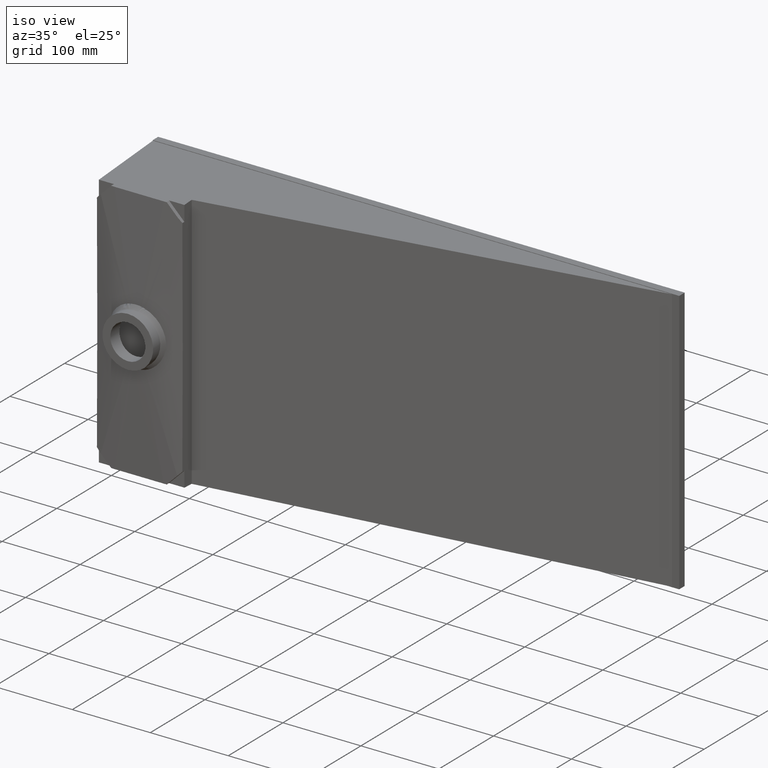
[diagram: clean part render]
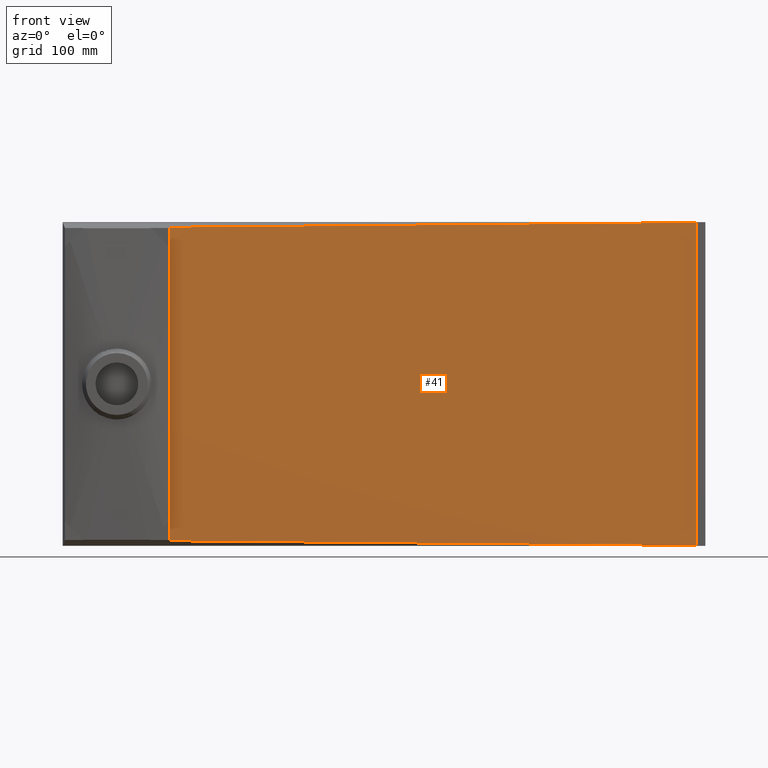
[diagram: tour spotlight — one face highlighted and labeled with its STEP entity id]
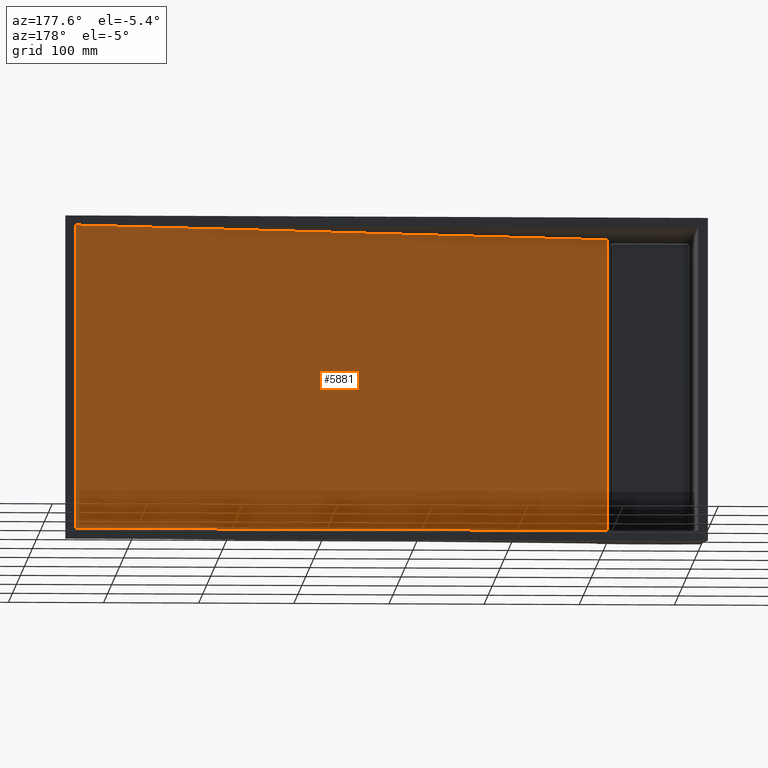
[diagram: tour spotlight — one face highlighted and labeled with its STEP entity id]
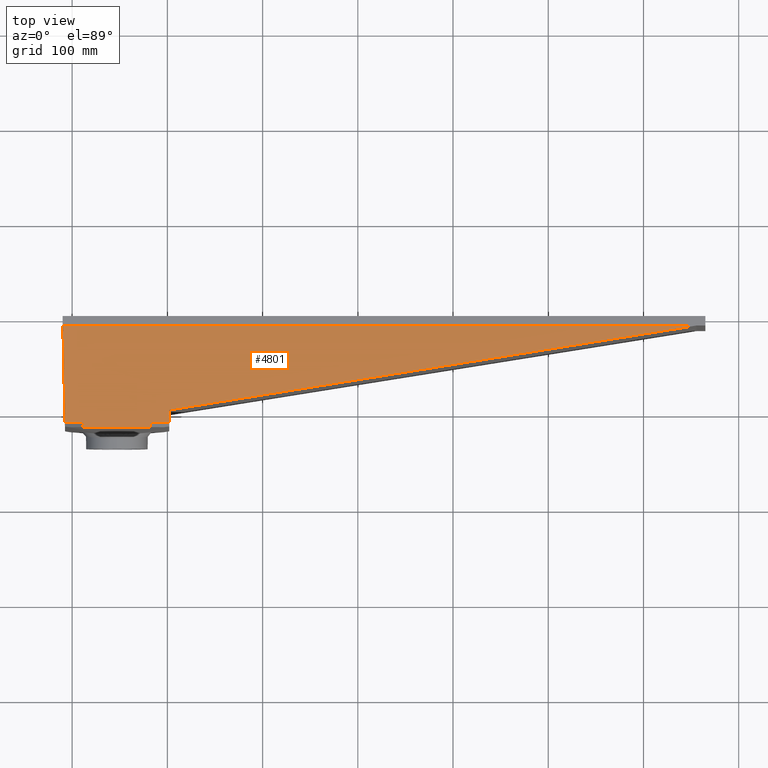
[diagram: tour spotlight — one face highlighted and labeled with its STEP entity id]
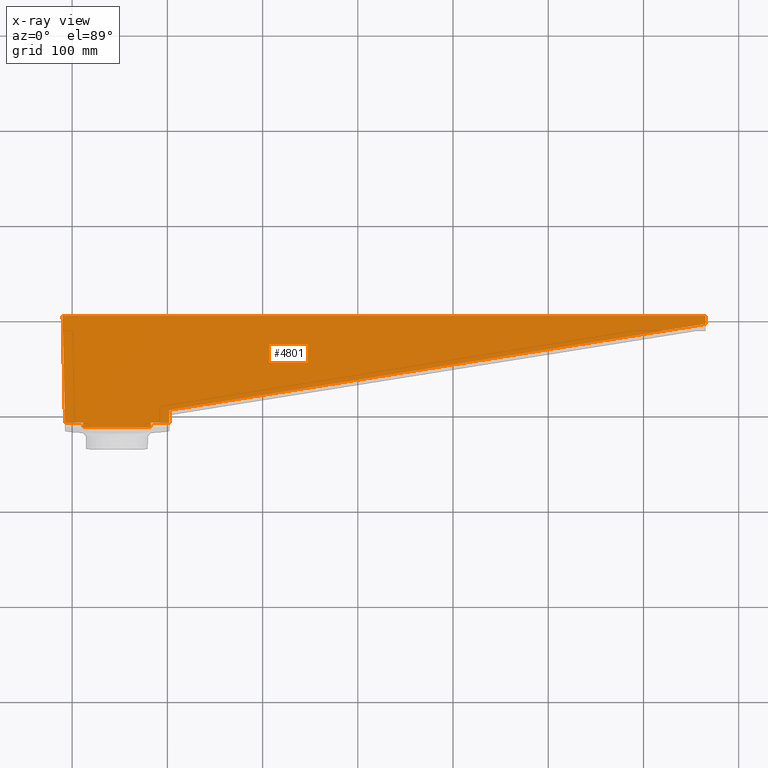
[diagram: x-ray of the same camera — body ghosted, this tour face saturated]
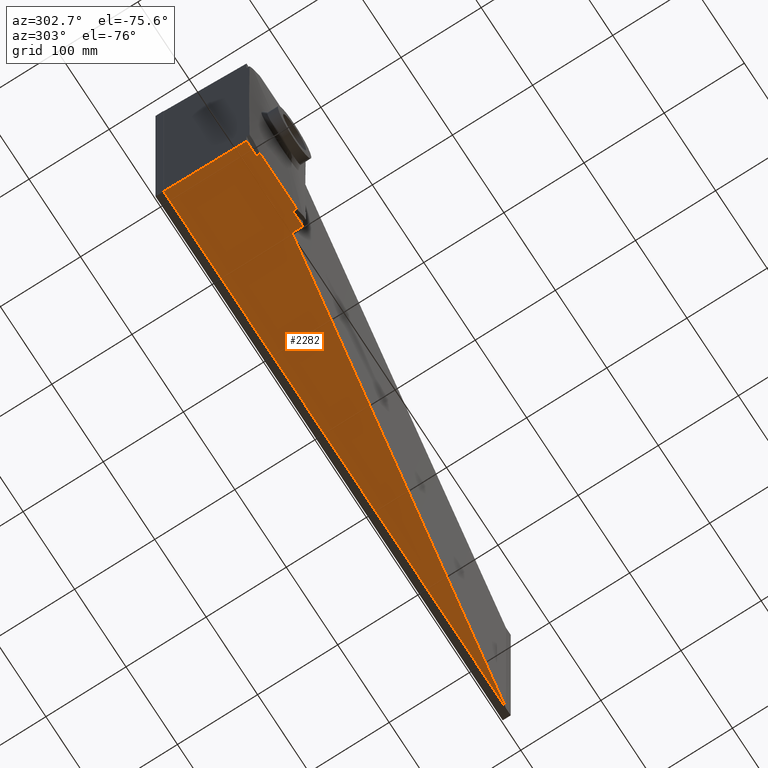
[diagram: tour spotlight — one face highlighted and labeled with its STEP entity id]
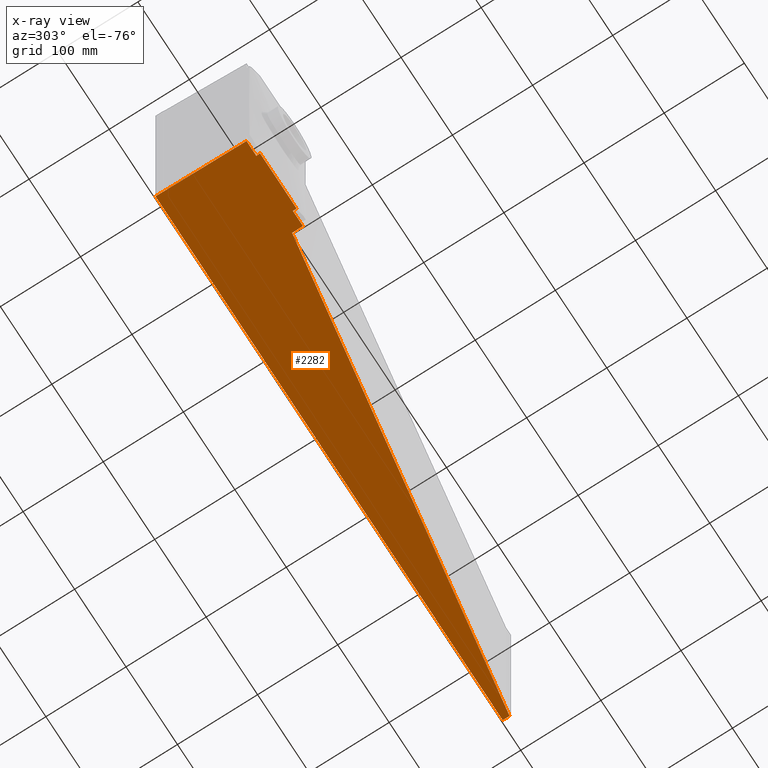
[diagram: x-ray of the same camera — body ghosted, this tour face saturated]
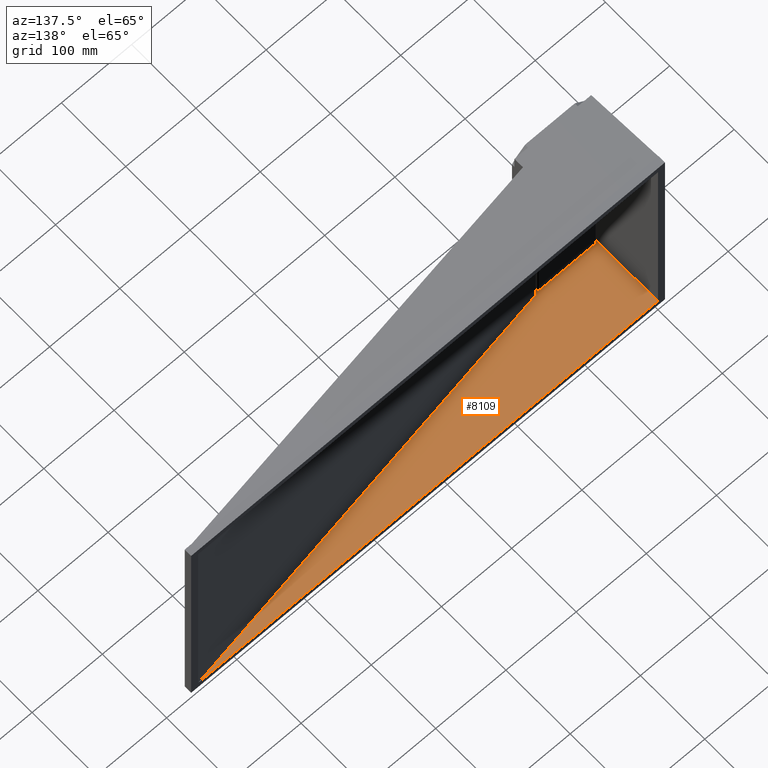
[diagram: tour spotlight — one face highlighted and labeled with its STEP entity id]
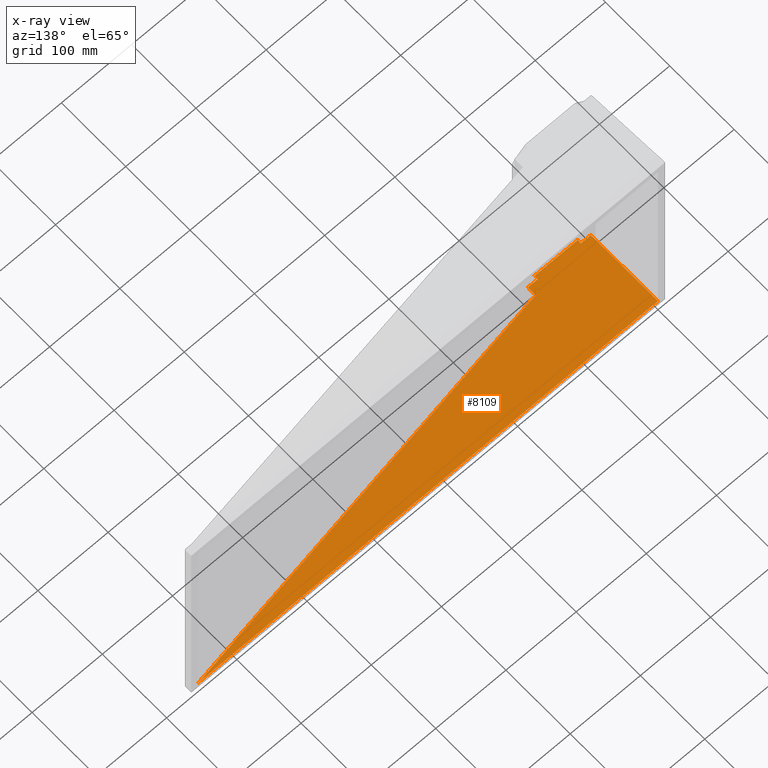
[diagram: x-ray of the same camera — body ghosted, this tour face saturated]
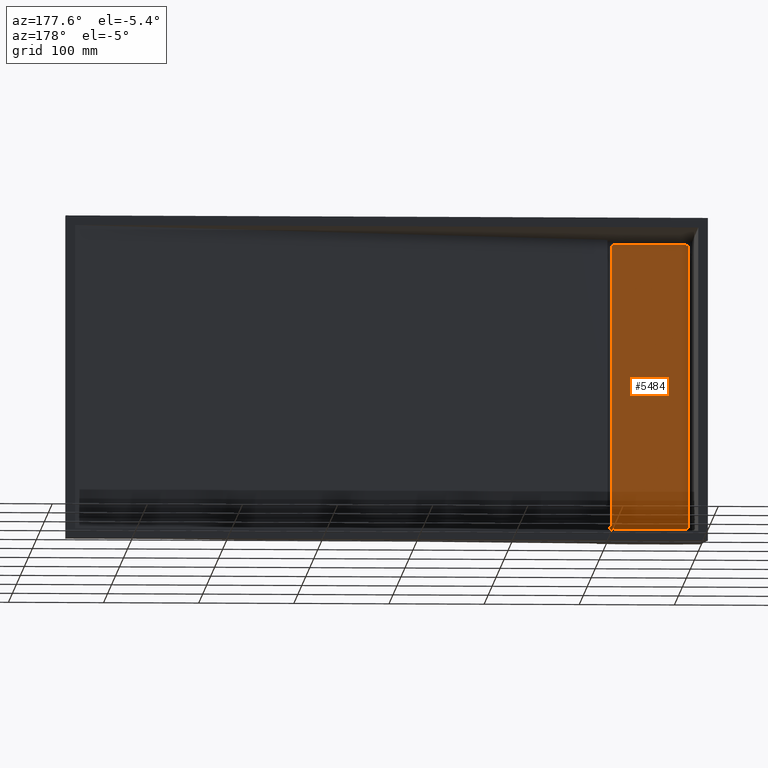
[diagram: tour spotlight — one face highlighted and labeled with its STEP entity id]
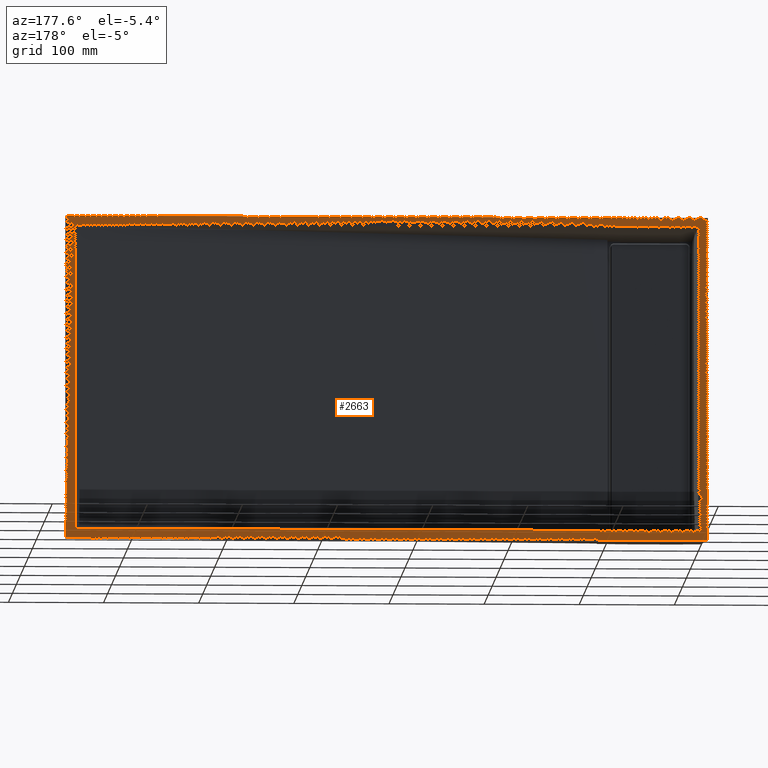
[diagram: tour spotlight — one face highlighted and labeled with its STEP entity id]
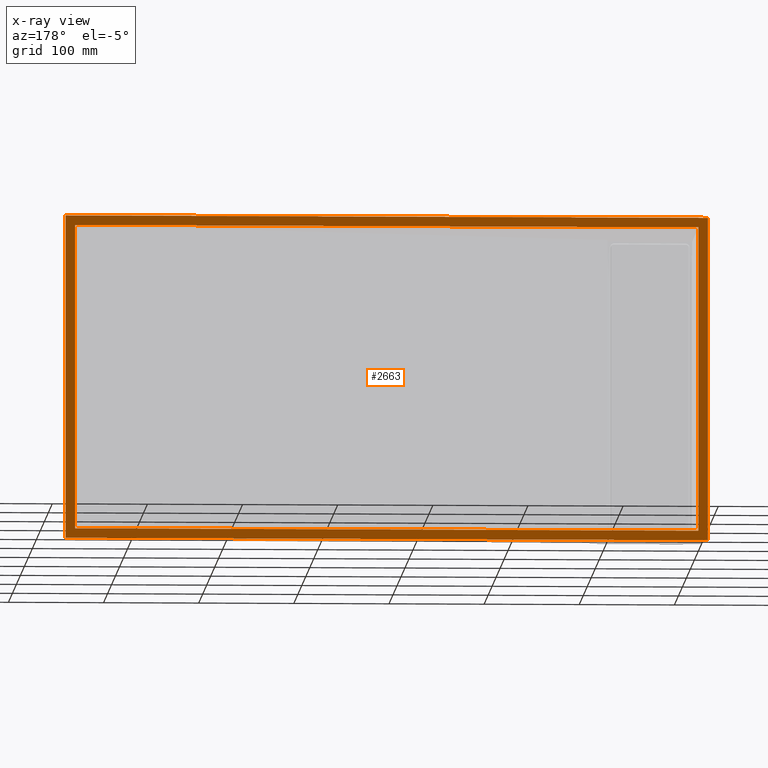
[diagram: x-ray of the same camera — body ghosted, this tour face saturated]
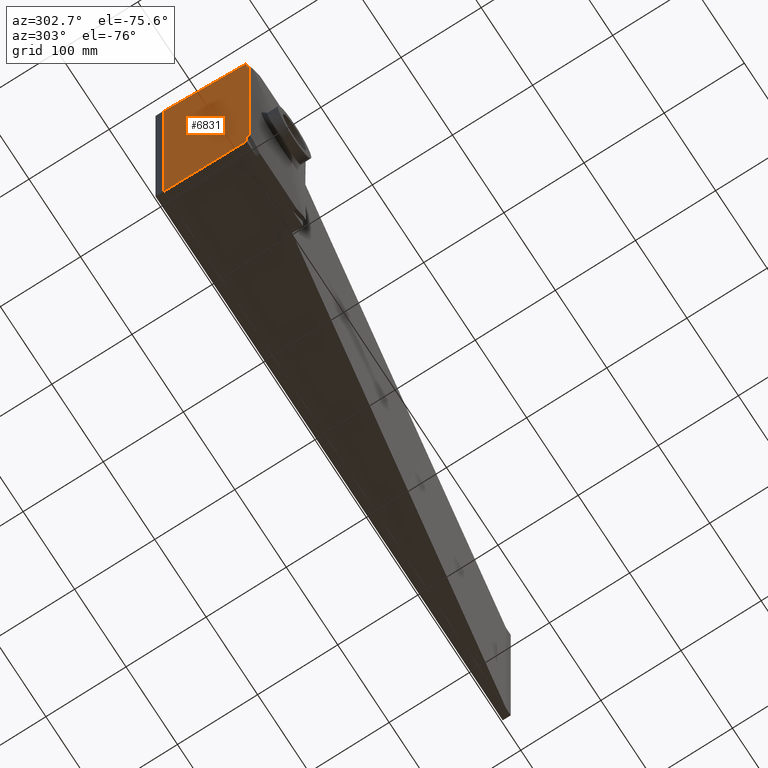
[diagram: tour spotlight — one face highlighted and labeled with its STEP entity id]
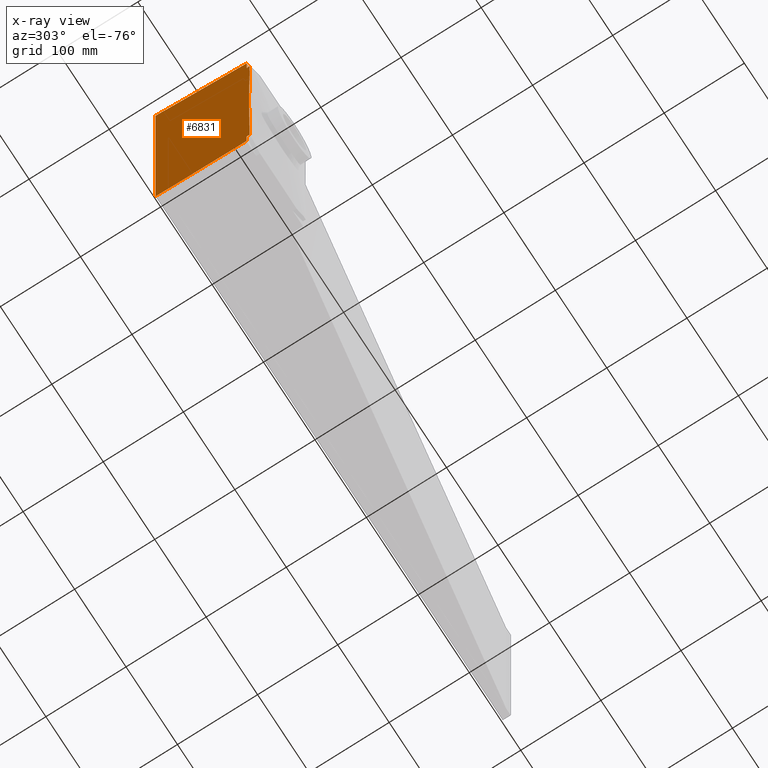
[diagram: x-ray of the same camera — body ghosted, this tour face saturated]
A machine part: a face-by-face anatomy tour. The part has 93 B-rep faces; the first image is the clean iso view, then the 8 largest visible faces are spotlighted one at a time (largest first), each with its STEP entity span.

Face 1 — front view, entity #41. In plain terms, the highlighted planar face has unit normal (0.1579, -0.9875, -0).
Definition (entity closure, byte-faithful):
#41 = ADVANCED_FACE ( 'NONE', ( #5549 ), #4248, .T. ) ;
#252 = EDGE_LOOP ( 'NONE', ( #5179, #5557, #5735, #998 ) ) ;
#333 = EDGE_CURVE ( 'NONE', #1598, #3714, #3036, .T. ) ;
#793 = CARTESIAN_POINT ( 'NONE',  ( 102.0000000000000000, -98.52838767923954300, -324.5416208941088600 ) ) ;
#998 = ORIENTED_EDGE ( 'NONE', *, *, #6112, .F. ) ;
#1099 = VECTOR ( 'NONE', #7096, 1000.000000000000100 ) ;
#1144 = CARTESIAN_POINT ( 'NONE',  ( 102.0000000000000300, -98.52838767923954300, 4.541620894108881100 ) ) ;
#1598 = VERTEX_POINT ( 'NONE', #2391 ) ;
#1677 = DIRECTION ( 'NONE',  ( -0.9874245432834220000, -0.1578476179316304900, 0.008769312107312812700 ) ) ;
#1692 = CARTESIAN_POINT ( 'NONE',  ( 93.49656327366901100, -99.88772925183242500, -324.4661019178536800 ) ) ;
#2073 = LINE ( 'NONE', #3341, #2869 ) ;
#2235 = VECTOR ( 'NONE', #2785, 1000.000000000000000 ) ;
#2337 = CARTESIAN_POINT ( 'NONE',  ( 665.0000000000000000, -8.528387679239552100, -330.0154202096221600 ) ) ;
#2391 = CARTESIAN_POINT ( 'NONE',  ( 665.0000000000000000, -8.528387679239545000, -329.5416208941088600 ) ) ;
#2785 = DIRECTION ( 'NONE',  ( 0.0000000000000000000, -2.146910392545639500E-017, 1.000000000000000000 ) ) ;
#2869 = VECTOR ( 'NONE', #3307, 1000.000000000000000 ) ;
#3036 = LINE ( 'NONE', #2337, #2235 ) ;
#3307 = DIRECTION ( 'NONE',  ( -1.343011723336883000E-016, 3.120612552326141700E-033, -1.000000000000000000 ) ) ;
#3341 = CARTESIAN_POINT ( 'NONE',  ( 102.0000000000000300, -98.52838767923954300, -1.369871957803620900E-014 ) ) ;
#3545 = DIRECTION ( 'NONE',  ( 0.9874625123591839200, 0.1578536875885018800, 0.0000000000000000000 ) ) ;
#3714 = VERTEX_POINT ( 'NONE', #6553 ) ;
#3756 = DIRECTION ( 'NONE',  ( 0.1578536875885019100, -0.9874625123591840300, -2.119993530033159300E-017 ) ) ;
#4010 = VECTOR ( 'NONE', #1677, 1000.000000000000100 ) ;
#4248 = PLANE ( 'NONE',  #7675 ) ;
#4690 = LINE ( 'NONE', #6695, #1099 ) ;
#5179 = ORIENTED_EDGE ( 'NONE', *, *, #333, .T. ) ;
#5549 = FACE_OUTER_BOUND ( 'NONE', #252, .T. ) ;
#5557 = ORIENTED_EDGE ( 'NONE', *, *, #6474, .T. ) ;
#5735 = ORIENTED_EDGE ( 'NONE', *, *, #8213, .T. ) ;
#6112 = EDGE_CURVE ( 'NONE', #1598, #7887, #6952, .T. ) ;
#6251 = VERTEX_POINT ( 'NONE', #1144 ) ;
#6474 = EDGE_CURVE ( 'NONE', #3714, #6251, #4690, .T. ) ;
#6553 = CARTESIAN_POINT ( 'NONE',  ( 664.9999999999996600, -8.528387679239621400, 9.541620894108852700 ) ) ;
#6695 = CARTESIAN_POINT ( 'NONE',  ( 17.86682848926818700, -111.9777401409906500, 3.794434646233825000 ) ) ;
#6952 = LINE ( 'NONE', #1692, #4010 ) ;
#7096 = DIRECTION ( 'NONE',  ( -0.9874245432834220000, -0.1578476179316304900, -0.008769312107312759000 ) ) ;
#7629 = CARTESIAN_POINT ( 'NONE',  ( 17.89968715474889600, -111.9724874235958700, -2.403948969289038500E-015 ) ) ;
#7675 = AXIS2_PLACEMENT_3D ( 'NONE', #7629, #3756, #3545 ) ;
#7887 = VERTEX_POINT ( 'NONE', #793 ) ;
#8213 = EDGE_CURVE ( 'NONE', #6251, #7887, #2073, .T. ) ;

Face 2 — auxiliary view, entity #5881. In plain terms, the highlighted planar face has unit normal (0.1579, -0.9875, -0).
Definition (entity closure, byte-faithful):
#801 = LINE ( 'NONE', #1782, #7225 ) ;
#911 = CARTESIAN_POINT ( 'NONE',  ( 655.0000000000000000, 0.0000000000000000000, 0.0000000000000000000 ) ) ;
#1116 = VECTOR ( 'NONE', #6076, 1000.000000000000100 ) ;
#1345 = VERTEX_POINT ( 'NONE', #2385 ) ;
#1507 = DIRECTION ( 'NONE',  ( -0.9874245432834220000, -0.1578476179316304900, 0.008769312107312812700 ) ) ;
#1782 = CARTESIAN_POINT ( 'NONE',  ( 655.0000000000000000, 0.0000000000000000000, -320.0000000000000000 ) ) ;
#1932 = DIRECTION ( 'NONE',  ( -1.343011723336883000E-016, -0.0000000000000000000, -1.000000000000000000 ) ) ;
#2385 = CARTESIAN_POINT ( 'NONE',  ( 92.00000000000000000, -90.00000000000000000, -315.0000000000000000 ) ) ;
#2457 = CARTESIAN_POINT ( 'NONE',  ( 92.00000000000000000, -90.00000000000000000, -315.0000000000000000 ) ) ;
#2469 = VECTOR ( 'NONE', #7849, 1000.000000000000000 ) ;
#2505 = AXIS2_PLACEMENT_3D ( 'NONE', #3101, #3018, #3010 ) ;
#2736 = VECTOR ( 'NONE', #1932, 1000.000000000000000 ) ;
#2928 = CARTESIAN_POINT ( 'NONE',  ( 655.0000000000000000, 0.0000000000000000000, -320.0000000000000000 ) ) ;
#3010 = DIRECTION ( 'NONE',  ( 0.9874625123591839200, 0.1578536875885018800, 0.0000000000000000000 ) ) ;
#3018 = DIRECTION ( 'NONE',  ( 0.1578536875885019100, -0.9874625123591840300, -2.119993530033159300E-017 ) ) ;
#3050 = PLANE ( 'NONE',  #2505 ) ;
#3101 = CARTESIAN_POINT ( 'NONE',  ( 16.32115027886387500, -102.0978623000040200, -2.191949616285722700E-015 ) ) ;
#3139 = ORIENTED_EDGE ( 'NONE', *, *, #6153, .T. ) ;
#3222 = FACE_OUTER_BOUND ( 'NONE', #4121, .T. ) ;
#4006 = CARTESIAN_POINT ( 'NONE',  ( 655.0000000000000000, 0.0000000000000000000, 0.0000000000000000000 ) ) ;
#4028 = VERTEX_POINT ( 'NONE', #2928 ) ;
#4121 = EDGE_LOOP ( 'NONE', ( #4920, #8091, #3139, #4895 ) ) ;
#4602 = LINE ( 'NONE', #2457, #2736 ) ;
#4895 = ORIENTED_EDGE ( 'NONE', *, *, #4947, .F. ) ;
#4920 = ORIENTED_EDGE ( 'NONE', *, *, #6991, .F. ) ;
#4947 = EDGE_CURVE ( 'NONE', #6444, #1345, #4602, .T. ) ;
#5881 = ADVANCED_FACE ( 'NONE', ( #3222 ), #3050, .F. ) ;
#6076 = DIRECTION ( 'NONE',  ( -0.9874245432834220000, -0.1578476179316305200, -0.008769312107312814500 ) ) ;
#6153 = EDGE_CURVE ( 'NONE', #4028, #1345, #801, .T. ) ;
#6247 = CARTESIAN_POINT ( 'NONE',  ( 655.0000000000000000, 0.0000000000000000000, 0.0000000000000000000 ) ) ;
#6444 = VERTEX_POINT ( 'NONE', #8110 ) ;
#6914 = LINE ( 'NONE', #4006, #2469 ) ;
#6991 = EDGE_CURVE ( 'NONE', #8004, #6444, #7730, .T. ) ;
#7225 = VECTOR ( 'NONE', #1507, 1000.000000000000100 ) ;
#7730 = LINE ( 'NONE', #6247, #1116 ) ;
#7849 = DIRECTION ( 'NONE',  ( 0.0000000000000000000, 0.0000000000000000000, -1.000000000000000000 ) ) ;
#8004 = VERTEX_POINT ( 'NONE', #911 ) ;
#8091 = ORIENTED_EDGE ( 'NONE', *, *, #8123, .T. ) ;
#8110 = CARTESIAN_POINT ( 'NONE',  ( 92.00000000000004300, -90.00000000000000000, -5.000000000000004400 ) ) ;
#8123 = EDGE_CURVE ( 'NONE', #8004, #4028, #6914, .T. ) ;

Face 3 — top view, entity #4801. An x-ray twin of the same camera follows (body ghosted, this face saturated) — the face is partly hidden behind the body. In plain terms, the highlighted planar face has unit normal (0, -0.0555, 0.9985).
Definition (entity closure, byte-faithful):
#76 = ORIENTED_EDGE ( 'NONE', *, *, #6237, .F. ) ;
#93 = EDGE_CURVE ( 'NONE', #4075, #2531, #3884, .T. ) ;
#349 = AXIS2_PLACEMENT_3D ( 'NONE', #2943, #2822, #2770 ) ;
#660 = LINE ( 'NONE', #3034, #3994 ) ;
#792 = LINE ( 'NONE', #1419, #3628 ) ;
#1092 = VECTOR ( 'NONE', #1183, 1000.000000000000100 ) ;
#1099 = VECTOR ( 'NONE', #7096, 1000.000000000000100 ) ;
#1144 = CARTESIAN_POINT ( 'NONE',  ( 102.0000000000000300, -98.52838767923954300, 4.541620894108881100 ) ) ;
#1177 = DIRECTION ( 'NONE',  ( -1.000000000000000000, 0.0000000000000000000, 4.818676322157799500E-017 ) ) ;
#1183 = DIRECTION ( 'NONE',  ( 0.02218254820132585500, -0.9982146690596641600, -0.05545637050331467300 ) ) ;
#1192 = ORIENTED_EDGE ( 'NONE', *, *, #5347, .F. ) ;
#1210 = CARTESIAN_POINT ( 'NONE',  ( 1.827819332714086900E-016, -111.9999999999999900, 3.793197987399973900 ) ) ;
#1214 = VERTEX_POINT ( 'NONE', #4694 ) ;
#1413 = VERTEX_POINT ( 'NONE', #7339 ) ;
#1419 = CARTESIAN_POINT ( 'NONE',  ( 102.0000000000000300, -446.4786395727389300, -14.78894865552993200 ) ) ;
#1448 = DIRECTION ( 'NONE',  ( 7.449688664677521200E-018, 0.9984603532054123800, 0.05547001962252291100 ) ) ;
#1527 = VECTOR ( 'NONE', #3937, 1000.000000000000100 ) ;
#1564 = EDGE_CURVE ( 'NONE', #4839, #1214, #3816, .T. ) ;
#1607 = ORIENTED_EDGE ( 'NONE', *, *, #1564, .T. ) ;
#1705 = CARTESIAN_POINT ( 'NONE',  ( 78.74294822847757300, -116.6860818408072000, 3.532860107355123800 ) ) ;
#1794 = B_SPLINE_CURVE_WITH_KNOTS ( 'NONE', 3,
 ( #8041, #5427, #5407, #5399, #5393, #5385, #5373, #5355, #5343, #5340, #5333, #5325, #5315 ),
 .UNSPECIFIED., .F., .F.,
 ( 4, 3, 3, 3, 4 ),
 ( 0.0000000000000000000, 0.01587147408765479000, 0.03174294817560038800, 0.04761442232735621500, 0.06348589649345449900 ),
 .UNSPECIFIED. ) ;
#1903 = CARTESIAN_POINT ( 'NONE',  ( 102.0000000000000300, -111.9999999999999900, 3.793197987399968200 ) ) ;
#1910 = B_SPLINE_CURVE_WITH_KNOTS ( 'NONE', 3,
 ( #6048, #6090, #5453, #5431 ),
 .UNSPECIFIED., .F., .F.,
 ( 4, 4 ),
 ( 0.0000000000000000000, 0.003861459846372677500 ),
 .UNSPECIFIED. ) ;
#1937 = VECTOR ( 'NONE', #2705, 1000.000000000000000 ) ;
#1988 = ORIENTED_EDGE ( 'NONE', *, *, #5617, .F. ) ;
#2019 = CARTESIAN_POINT ( 'NONE',  ( -7.985226356274241200, -90.77591136473346000, 4.972314022692558000 ) ) ;
#2336 = DIRECTION ( 'NONE',  ( -1.000000000000000000, 0.0000000000000000000, 4.818676322157799500E-017 ) ) ;
#2453 = CARTESIAN_POINT ( 'NONE',  ( 82.34893763633100100, -111.9999999999999900, 3.793197987399969100 ) ) ;
#2531 = VERTEX_POINT ( 'NONE', #7258 ) ;
#2574 = EDGE_CURVE ( 'NONE', #2531, #6085, #1910, .T. ) ;
#2683 = CARTESIAN_POINT ( 'NONE',  ( 11.39755694272786400, -116.5630975769416200, 3.539692566458767500 ) ) ;
#2693 = VERTEX_POINT ( 'NONE', #2953 ) ;
#2705 = DIRECTION ( 'NONE',  ( 1.000000000000000000, 0.0000000000000000000, -4.818676322157799500E-017 ) ) ;
#2770 = DIRECTION ( 'NONE',  ( 0.0000000000000000000, -0.9984603532054123800, -0.05547001962252291100 ) ) ;
#2822 = DIRECTION ( 'NONE',  ( 4.811257262604234000E-017, -0.05547001962252291800, 0.9984603532054124900 ) ) ;
#2887 = CARTESIAN_POINT ( 'NONE',  ( 2.000000000000039100, 0.0000000000000000000, 10.01542020962219600 ) ) ;
#2924 = CARTESIAN_POINT ( 'NONE',  ( -10.00246883104609300, 0.0000000000000000000, 10.01542020962219600 ) ) ;
#2932 = FACE_OUTER_BOUND ( 'NONE', #3402, .T. ) ;
#2943 = CARTESIAN_POINT ( 'NONE',  ( 2.000000000000038600, -90.55470019622522700, 4.984603532054126000 ) ) ;
#2953 = CARTESIAN_POINT ( 'NONE',  ( 15.25705177152248900, -116.6860818408072300, 3.532860107355126900 ) ) ;
#3034 = CARTESIAN_POINT ( 'NONE',  ( 1.827819332714086900E-016, -111.9999999999999900, 3.793197987399973900 ) ) ;
#3136 = LINE ( 'NONE', #1210, #4698 ) ;
#3402 = EDGE_LOOP ( 'NONE', ( #5336, #1192, #1607, #6406, #3704, #7030, #1988, #8115, #4384, #76, #5911, #7195 ) ) ;
#3543 = B_SPLINE_CURVE_WITH_KNOTS ( 'NONE', 3,
 ( #4036, #4037, #4023, #4011 ),
 .UNSPECIFIED., .F., .F.,
 ( 4, 4 ),
 ( 0.0000000000000000000, 0.003861459846372667100 ),
 .UNSPECIFIED. ) ;
#3628 = VECTOR ( 'NONE', #1448, 1000.000000000000200 ) ;
#3704 = ORIENTED_EDGE ( 'NONE', *, *, #5685, .F. ) ;
#3714 = VERTEX_POINT ( 'NONE', #6553 ) ;
#3816 = LINE ( 'NONE', #2019, #1092 ) ;
#3884 = LINE ( 'NONE', #6768, #3917 ) ;
#3917 = VECTOR ( 'NONE', #4269, 1000.000000000000100 ) ;
#3937 = DIRECTION ( 'NONE',  ( 0.05538487756217112800, 0.9969277961190803300, 0.05538487756217112800 ) ) ;
#3951 = CARTESIAN_POINT ( 'NONE',  ( 12.15583457118111500, -102.9141002647829500, 4.297970194912030800 ) ) ;
#3994 = VECTOR ( 'NONE', #2336, 1000.000000000000000 ) ;
#4011 = CARTESIAN_POINT ( 'NONE',  ( 11.39755694272786400, -116.5630975769416200, 3.539692566458767500 ) ) ;
#4023 = CARTESIAN_POINT ( 'NONE',  ( 12.68405216945524700, -116.6041876268782900, 3.537409785906749700 ) ) ;
#4036 = CARTESIAN_POINT ( 'NONE',  ( 15.25705177152248900, -116.6860818408072300, 3.532860107355126900 ) ) ;
#4037 = CARTESIAN_POINT ( 'NONE',  ( 13.97055032657576100, -116.6451863401356500, 3.535132079614658400 ) ) ;
#4075 = VERTEX_POINT ( 'NONE', #2453 ) ;
#4082 = EDGE_CURVE ( 'NONE', #4665, #1214, #660, .T. ) ;
#4269 = DIRECTION ( 'NONE',  ( 0.05538487756217112800, -0.9969277961190803300, -0.05538487756217112800 ) ) ;
#4384 = ORIENTED_EDGE ( 'NONE', *, *, #93, .F. ) ;
#4481 = LINE ( 'NONE', #2887, #1937 ) ;
#4665 = VERTEX_POINT ( 'NONE', #6633 ) ;
#4690 = LINE ( 'NONE', #6695, #1099 ) ;
#4694 = CARTESIAN_POINT ( 'NONE',  ( -7.513579942157206500, -111.9999999999999900, 3.793197987399973900 ) ) ;
#4698 = VECTOR ( 'NONE', #1177, 1000.000000000000000 ) ;
#4801 = ADVANCED_FACE ( 'NONE', ( #2932 ), #6222, .T. ) ;
#4839 = VERTEX_POINT ( 'NONE', #2924 ) ;
#4887 = VERTEX_POINT ( 'NONE', #2683 ) ;
#4952 = VERTEX_POINT ( 'NONE', #1903 ) ;
#5010 = DIRECTION ( 'NONE',  ( 0.0000000000000000000, 0.9984603532054123800, 0.05547001962252291100 ) ) ;
#5020 = CARTESIAN_POINT ( 'NONE',  ( 665.0000000000000000, -155.4119357770658500, 1.381423777563006700 ) ) ;
#5315 = CARTESIAN_POINT ( 'NONE',  ( 15.25705177152248900, -116.6860818408072300, 3.532860107355126900 ) ) ;
#5325 = CARTESIAN_POINT ( 'NONE',  ( 20.54754315081935800, -116.6857669087487000, 3.532877603580598900 ) ) ;
#5333 = CARTESIAN_POINT ( 'NONE',  ( 25.83803453508747000, -116.6855248819317000, 3.532891049514877300 ) ) ;
#5336 = ORIENTED_EDGE ( 'NONE', *, *, #8143, .T. ) ;
#5340 = CARTESIAN_POINT ( 'NONE',  ( 31.12852592132469500, -116.6853637224093900, 3.532900002821671000 ) ) ;
#5343 = CARTESIAN_POINT ( 'NONE',  ( 36.41901730275197500, -116.6852025628872600, 3.532908956128456800 ) ) ;
#5347 = EDGE_CURVE ( 'NONE', #4839, #1413, #4481, .T. ) ;
#5355 = CARTESIAN_POINT ( 'NONE',  ( 41.70950868723740300, -116.6851207026257200, 3.532913503920762600 ) ) ;
#5373 = CARTESIAN_POINT ( 'NONE',  ( 47.00000007112689800, -116.6851207026264600, 3.532913503920721300 ) ) ;
#5385 = CARTESIAN_POINT ( 'NONE',  ( 52.29049143374631100, -116.6851207026272000, 3.532913503920680500 ) ) ;
#5393 = CARTESIAN_POINT ( 'NONE',  ( 57.58098279696166300, -116.6852025628895100, 3.532908956128332000 ) ) ;
#5399 = CARTESIAN_POINT ( 'NONE',  ( 62.87147415711886800, -116.6853637224117900, 3.532900002821538300 ) ) ;
#5407 = CARTESIAN_POINT ( 'NONE',  ( 68.16196551720827300, -116.6855248819340900, 3.532891049514745000 ) ) ;
#5411 = LINE ( 'NONE', #5020, #6520 ) ;
#5427 = CARTESIAN_POINT ( 'NONE',  ( 73.45245687532855100, -116.6857669087503500, 3.532877603580504700 ) ) ;
#5431 = CARTESIAN_POINT ( 'NONE',  ( 78.74294822847757300, -116.6860818408072000, 3.532860107355123800 ) ) ;
#5453 = CARTESIAN_POINT ( 'NONE',  ( 80.02944967342432400, -116.6451863401356400, 3.535132079614663700 ) ) ;
#5617 = EDGE_CURVE ( 'NONE', #6085, #2693, #1794, .T. ) ;
#5647 = EDGE_CURVE ( 'NONE', #2693, #4887, #3543, .T. ) ;
#5685 = EDGE_CURVE ( 'NONE', #4887, #4665, #8192, .T. ) ;
#5911 = ORIENTED_EDGE ( 'NONE', *, *, #6183, .T. ) ;
#6048 = CARTESIAN_POINT ( 'NONE',  ( 82.60244305727221100, -116.5630975769415900, 3.539692566458768400 ) ) ;
#6085 = VERTEX_POINT ( 'NONE', #1705 ) ;
#6090 = CARTESIAN_POINT ( 'NONE',  ( 81.31594783054484300, -116.6041876268782400, 3.537409785906731500 ) ) ;
#6183 = EDGE_CURVE ( 'NONE', #4952, #6251, #792, .T. ) ;
#6222 = PLANE ( 'NONE',  #349 ) ;
#6237 = EDGE_CURVE ( 'NONE', #4952, #4075, #3136, .T. ) ;
#6251 = VERTEX_POINT ( 'NONE', #1144 ) ;
#6406 = ORIENTED_EDGE ( 'NONE', *, *, #4082, .F. ) ;
#6474 = EDGE_CURVE ( 'NONE', #3714, #6251, #4690, .T. ) ;
#6520 = VECTOR ( 'NONE', #5010, 1000.000000000000200 ) ;
#6553 = CARTESIAN_POINT ( 'NONE',  ( 664.9999999999996600, -8.528387679239621400, 9.541620894108852700 ) ) ;
#6633 = CARTESIAN_POINT ( 'NONE',  ( 11.65106236366905700, -111.9999999999999900, 3.793197987399972600 ) ) ;
#6695 = CARTESIAN_POINT ( 'NONE',  ( 17.86682848926818700, -111.9777401409906500, 3.794434646233825000 ) ) ;
#6768 = CARTESIAN_POINT ( 'NONE',  ( 81.55582187053674700, -97.72391621570318400, 4.586313753194238200 ) ) ;
#7030 = ORIENTED_EDGE ( 'NONE', *, *, #5647, .F. ) ;
#7096 = DIRECTION ( 'NONE',  ( -0.9874245432834220000, -0.1578476179316304900, -0.008769312107312759000 ) ) ;
#7195 = ORIENTED_EDGE ( 'NONE', *, *, #6474, .F. ) ;
#7258 = CARTESIAN_POINT ( 'NONE',  ( 82.60244305727221100, -116.5630975769415900, 3.539692566458768400 ) ) ;
#7339 = CARTESIAN_POINT ( 'NONE',  ( 664.9999999999997700, 0.0000000000000000000, 10.01542020962216400 ) ) ;
#8041 = CARTESIAN_POINT ( 'NONE',  ( 78.74294822847757300, -116.6860818408072000, 3.532860107355123800 ) ) ;
#8115 = ORIENTED_EDGE ( 'NONE', *, *, #2574, .F. ) ;
#8143 = EDGE_CURVE ( 'NONE', #3714, #1413, #5411, .T. ) ;
#8192 = LINE ( 'NONE', #3951, #1527 ) ;

Face 4 — auxiliary view, entity #2282. An x-ray twin of the same camera follows (body ghosted, this face saturated) — the face is partly hidden behind the body. In plain terms, the highlighted planar face has unit normal (0, -0.0555, -0.9985).
Definition (entity closure, byte-faithful):
#47 = VERTEX_POINT ( 'NONE', #471 ) ;
#150 = ORIENTED_EDGE ( 'NONE', *, *, #652, .T. ) ;
#358 = EDGE_CURVE ( 'NONE', #734, #3090, #6876, .T. ) ;
#397 = EDGE_CURVE ( 'NONE', #47, #1310, #2961, .T. ) ;
#471 = CARTESIAN_POINT ( 'NONE',  ( 11.39755694272778900, -116.5630975769416000, -323.5396925664586500 ) ) ;
#615 = VERTEX_POINT ( 'NONE', #4720 ) ;
#652 = EDGE_CURVE ( 'NONE', #6673, #1598, #5789, .T. ) ;
#662 = ORIENTED_EDGE ( 'NONE', *, *, #6769, .F. ) ;
#702 = EDGE_CURVE ( 'NONE', #615, #6294, #4983, .T. ) ;
#713 = ORIENTED_EDGE ( 'NONE', *, *, #702, .F. ) ;
#734 = VERTEX_POINT ( 'NONE', #3365 ) ;
#793 = CARTESIAN_POINT ( 'NONE',  ( 102.0000000000000000, -98.52838767923954300, -324.5416208941088600 ) ) ;
#923 = EDGE_CURVE ( 'NONE', #6294, #3351, #1536, .T. ) ;
#1059 = CARTESIAN_POINT ( 'NONE',  ( -7.513579942157246400, -111.9999999999999900, -323.7931979873999900 ) ) ;
#1121 = EDGE_LOOP ( 'NONE', ( #150, #6741, #3559, #1212, #4876, #8062, #662, #5366, #3223, #5693, #713, #3812 ) ) ;
#1204 = VECTOR ( 'NONE', #3679, 1000.000000000000100 ) ;
#1212 = ORIENTED_EDGE ( 'NONE', *, *, #6435, .F. ) ;
#1310 = VERTEX_POINT ( 'NONE', #2291 ) ;
#1402 = CARTESIAN_POINT ( 'NONE',  ( 664.9999999999997700, 0.0000000000000000000, -330.0154202096221600 ) ) ;
#1437 = DIRECTION ( 'NONE',  ( 7.449688664677527300E-018, -0.9984603532054123800, 0.05547001962252295900 ) ) ;
#1536 = LINE ( 'NONE', #2548, #7230 ) ;
#1597 = CARTESIAN_POINT ( 'NONE',  ( 12.68405216945518500, -116.6041876268782600, -323.5374097859066200 ) ) ;
#1598 = VERTEX_POINT ( 'NONE', #2391 ) ;
#1677 = DIRECTION ( 'NONE',  ( -0.9874245432834220000, -0.1578476179316304900, 0.008769312107312812700 ) ) ;
#1692 = CARTESIAN_POINT ( 'NONE',  ( 93.49656327366901100, -99.88772925183242500, -324.4661019178536800 ) ) ;
#1829 = VERTEX_POINT ( 'NONE', #4755 ) ;
#1845 = CARTESIAN_POINT ( 'NONE',  ( 78.74294822847747400, -116.6860818408072300, -323.5328601073550200 ) ) ;
#2189 = DIRECTION ( 'NONE',  ( 1.000000000000000000, 0.0000000000000000000, 0.0000000000000000000 ) ) ;
#2282 = ADVANCED_FACE ( 'NONE', ( #3911 ), #7049, .T. ) ;
#2291 = CARTESIAN_POINT ( 'NONE',  ( 15.25705177152247800, -116.6860818408072300, -323.5328601073550800 ) ) ;
#2391 = CARTESIAN_POINT ( 'NONE',  ( 665.0000000000000000, -8.528387679239545000, -329.5416208941088600 ) ) ;
#2410 = CARTESIAN_POINT ( 'NONE',  ( 13.97055032657572800, -116.6451863401357200, -323.5351320796146400 ) ) ;
#2548 = CARTESIAN_POINT ( 'NONE',  ( 0.0000000000000000000, -111.9999999999999900, -323.7931979873999400 ) ) ;
#2625 = EDGE_CURVE ( 'NONE', #6673, #615, #4604, .T. ) ;
#2777 = AXIS2_PLACEMENT_3D ( 'NONE', #5842, #4527, #4493 ) ;
#2961 = B_SPLINE_CURVE_WITH_KNOTS ( 'NONE', 3,
 ( #4758, #1597, #2410, #7663 ),
 .UNSPECIFIED., .F., .F.,
 ( 4, 4 ),
 ( 0.0000000000000000000, 0.003861459846372731300 ),
 .UNSPECIFIED. ) ;
#3063 = DIRECTION ( 'NONE',  ( -0.05538487756217112100, 0.9969277961190803300, -0.05538487756217117000 ) ) ;
#3090 = VERTEX_POINT ( 'NONE', #4198 ) ;
#3223 = ORIENTED_EDGE ( 'NONE', *, *, #5563, .F. ) ;
#3351 = VERTEX_POINT ( 'NONE', #6966 ) ;
#3365 = CARTESIAN_POINT ( 'NONE',  ( 82.60244305727216800, -116.5630975769416000, -323.5396925664588800 ) ) ;
#3415 = EDGE_CURVE ( 'NONE', #4988, #734, #4930, .T. ) ;
#3559 = ORIENTED_EDGE ( 'NONE', *, *, #7812, .T. ) ;
#3679 = DIRECTION ( 'NONE',  ( 0.02218254820132586900, -0.9982146690596641600, 0.05545637050331471400 ) ) ;
#3812 = ORIENTED_EDGE ( 'NONE', *, *, #2625, .F. ) ;
#3905 = VECTOR ( 'NONE', #3063, 1000.000000000000100 ) ;
#3911 = FACE_OUTER_BOUND ( 'NONE', #1121, .T. ) ;
#3918 = CARTESIAN_POINT ( 'NONE',  ( 82.60244305727216800, -116.5630975769416000, -323.5396925664588800 ) ) ;
#3942 = CARTESIAN_POINT ( 'NONE',  ( 81.31594783054481500, -116.6041876268782600, -323.5374097859067300 ) ) ;
#4010 = VECTOR ( 'NONE', #1677, 1000.000000000000100 ) ;
#4060 = CARTESIAN_POINT ( 'NONE',  ( -7.985226356274281100, -90.77591136473344600, -324.9723140226925600 ) ) ;
#4188 = VECTOR ( 'NONE', #6981, 1000.000000000000000 ) ;
#4198 = CARTESIAN_POINT ( 'NONE',  ( 82.34893763633091600, -111.9999999999999900, -323.7931979873999900 ) ) ;
#4244 = CARTESIAN_POINT ( 'NONE',  ( 665.0000000000000000, -136.5794584615384500, -322.4276725173144800 ) ) ;
#4489 = DIRECTION ( 'NONE',  ( 0.0000000000000000000, -0.9984603532054123800, 0.05547001962252295900 ) ) ;
#4493 = DIRECTION ( 'NONE',  ( 0.0000000000000000000, 0.9984603532054123800, -0.05547001962252295900 ) ) ;
#4527 = DIRECTION ( 'NONE',  ( 0.0000000000000000000, -0.05547001962252296600, -0.9984603532054124900 ) ) ;
#4604 = LINE ( 'NONE', #4809, #6084 ) ;
#4720 = CARTESIAN_POINT ( 'NONE',  ( -10.00246883104613500, 0.0000000000000000000, -330.0154202096221600 ) ) ;
#4755 = CARTESIAN_POINT ( 'NONE',  ( 102.0000000000000000, -111.9999999999999900, -323.7931979873999900 ) ) ;
#4758 = CARTESIAN_POINT ( 'NONE',  ( 11.39755694272778900, -116.5630975769416000, -323.5396925664586500 ) ) ;
#4776 = CARTESIAN_POINT ( 'NONE',  ( 82.53741696256119600, -115.3926278721449300, -323.6047186611696700 ) ) ;
#4809 = CARTESIAN_POINT ( 'NONE',  ( 92.00000000000000000, 0.0000000000000000000, -330.0154202096221600 ) ) ;
#4827 = DIRECTION ( 'NONE',  ( -1.000000000000000000, 0.0000000000000000000, 0.0000000000000000000 ) ) ;
#4876 = ORIENTED_EDGE ( 'NONE', *, *, #358, .F. ) ;
#4930 = B_SPLINE_CURVE_WITH_KNOTS ( 'NONE', 3,
 ( #6517, #5793, #3942, #3918 ),
 .UNSPECIFIED., .F., .F.,
 ( 4, 4 ),
 ( 0.0000000000000000000, 0.003861459846372733400 ),
 .UNSPECIFIED. ) ;
#4983 = LINE ( 'NONE', #4060, #1204 ) ;
#4988 = VERTEX_POINT ( 'NONE', #1845 ) ;
#5366 = ORIENTED_EDGE ( 'NONE', *, *, #397, .F. ) ;
#5563 = EDGE_CURVE ( 'NONE', #3351, #47, #6574, .T. ) ;
#5612 = LINE ( 'NONE', #6405, #7473 ) ;
#5693 = ORIENTED_EDGE ( 'NONE', *, *, #923, .F. ) ;
#5789 = LINE ( 'NONE', #4244, #7327 ) ;
#5793 = CARTESIAN_POINT ( 'NONE',  ( 80.02944967342425300, -116.6451863401357100, -323.5351320796145800 ) ) ;
#5842 = CARTESIAN_POINT ( 'NONE',  ( 92.00000000000000000, -90.55470019622522700, -324.9846035320541100 ) ) ;
#6084 = VECTOR ( 'NONE', #4827, 1000.000000000000000 ) ;
#6112 = EDGE_CURVE ( 'NONE', #1598, #7887, #6952, .T. ) ;
#6294 = VERTEX_POINT ( 'NONE', #1059 ) ;
#6380 = VECTOR ( 'NONE', #8152, 1000.000000000000100 ) ;
#6405 = CARTESIAN_POINT ( 'NONE',  ( 102.0000000000000000, -429.3094088035081800, -306.1648974983161800 ) ) ;
#6435 = EDGE_CURVE ( 'NONE', #3090, #1829, #8102, .T. ) ;
#6517 = CARTESIAN_POINT ( 'NONE',  ( 78.74294822847747400, -116.6860818408072300, -323.5328601073550200 ) ) ;
#6574 = LINE ( 'NONE', #8172, #6380 ) ;
#6673 = VERTEX_POINT ( 'NONE', #1402 ) ;
#6741 = ORIENTED_EDGE ( 'NONE', *, *, #6112, .T. ) ;
#6769 = EDGE_CURVE ( 'NONE', #1310, #4988, #7615, .T. ) ;
#6876 = LINE ( 'NONE', #4776, #3905 ) ;
#6952 = LINE ( 'NONE', #1692, #4010 ) ;
#6966 = CARTESIAN_POINT ( 'NONE',  ( 11.65106236366900400, -111.9999999999999900, -323.7931979873999900 ) ) ;
#6981 = DIRECTION ( 'NONE',  ( 1.000000000000000000, 0.0000000000000000000, 0.0000000000000000000 ) ) ;
#7049 = PLANE ( 'NONE',  #2777 ) ;
#7151 = CARTESIAN_POINT ( 'NONE',  ( 0.0000000000000000000, -111.9999999999999900, -323.7931979873999400 ) ) ;
#7230 = VECTOR ( 'NONE', #2189, 1000.000000000000000 ) ;
#7327 = VECTOR ( 'NONE', #4489, 1000.000000000000200 ) ;
#7473 = VECTOR ( 'NONE', #1437, 1000.000000000000200 ) ;
#7550 = CARTESIAN_POINT ( 'NONE',  ( 78.74294822847747400, -116.6860818408072300, -323.5328601073550200 ) ) ;
#7602 = CARTESIAN_POINT ( 'NONE',  ( 73.45245684918063500, -116.6857669087486800, -323.5328776035805700 ) ) ;
#7615 = B_SPLINE_CURVE_WITH_KNOTS ( 'NONE', 3,
 ( #7890, #7865, #7847, #7819, #7791, #7763, #7736, #7709, #7682, #7658, #7633, #7602, #7550 ),
 .UNSPECIFIED., .F., .F.,
 ( 4, 3, 3, 3, 4 ),
 ( 0.0000000000000000000, 0.01587147408765477900, 0.03174294817560034700, 0.04761442232735613900, 0.06348589649345441600 ),
 .UNSPECIFIED. ) ;
#7633 = CARTESIAN_POINT ( 'NONE',  ( 68.16196546491251200, -116.6855248819317000, -323.5328910495148900 ) ) ;
#7658 = CARTESIAN_POINT ( 'NONE',  ( 62.87147407867528400, -116.6853637224093900, -323.5329000028216900 ) ) ;
#7663 = CARTESIAN_POINT ( 'NONE',  ( 15.25705177152247800, -116.6860818408072300, -323.5328601073550800 ) ) ;
#7682 = CARTESIAN_POINT ( 'NONE',  ( 57.58098269724801100, -116.6852025628872600, -323.5329089561284400 ) ) ;
#7709 = CARTESIAN_POINT ( 'NONE',  ( 52.29049131276259700, -116.6851207026257200, -323.5329135039207800 ) ) ;
#7736 = CARTESIAN_POINT ( 'NONE',  ( 46.99999992887311600, -116.6851207026264600, -323.5329135039207200 ) ) ;
#7763 = CARTESIAN_POINT ( 'NONE',  ( 41.70950856625371700, -116.6851207026272000, -323.5329135039206700 ) ) ;
#7791 = CARTESIAN_POINT ( 'NONE',  ( 36.41901720303837900, -116.6852025628895100, -323.5329089561282700 ) ) ;
#7812 = EDGE_CURVE ( 'NONE', #7887, #1829, #5612, .T. ) ;
#7819 = CARTESIAN_POINT ( 'NONE',  ( 31.12852584288117400, -116.6853637224117900, -323.5329000028214100 ) ) ;
#7847 = CARTESIAN_POINT ( 'NONE',  ( 25.83803448279178700, -116.6855248819340700, -323.5328910495146000 ) ) ;
#7865 = CARTESIAN_POINT ( 'NONE',  ( 20.54754312467151000, -116.6857669087502000, -323.5328776035805200 ) ) ;
#7887 = VERTEX_POINT ( 'NONE', #793 ) ;
#7890 = CARTESIAN_POINT ( 'NONE',  ( 15.25705177152247800, -116.6860818408072300, -323.5328601073550800 ) ) ;
#8062 = ORIENTED_EDGE ( 'NONE', *, *, #3415, .F. ) ;
#8102 = LINE ( 'NONE', #7151, #4188 ) ;
#8152 = DIRECTION ( 'NONE',  ( -0.05538487756217112100, -0.9969277961190803300, 0.05538487756217117000 ) ) ;
#8172 = CARTESIAN_POINT ( 'NONE',  ( 11.17423947915649400, -120.5828119212246600, -323.3163751028874900 ) ) ;

Face 5 — auxiliary view, entity #8109. An x-ray twin of the same camera follows (body ghosted, this face saturated) — the face is partly hidden behind the body. In plain terms, the highlighted planar face has unit normal (0, -0.0555, -0.9985).
Definition (entity closure, byte-faithful):
#77 = VERTEX_POINT ( 'NONE', #1412 ) ;
#130 = DIRECTION ( 'NONE',  ( 1.000000000000000000, 0.0000000000000000000, 0.0000000000000000000 ) ) ;
#178 = LINE ( 'NONE', #1578, #394 ) ;
#350 = CARTESIAN_POINT ( 'NONE',  ( 76.81682146348079200, -107.0356038962750100, -314.0535775613180900 ) ) ;
#394 = VECTOR ( 'NONE', #1559, 1000.000000000000200 ) ;
#477 = ORIENTED_EDGE ( 'NONE', *, *, #7311, .T. ) ;
#563 = CARTESIAN_POINT ( 'NONE',  ( 77.56857043458791200, -107.0118779742695500, -314.0548956680961500 ) ) ;
#608 = ORIENTED_EDGE ( 'NONE', *, *, #6153, .F. ) ;
#801 = LINE ( 'NONE', #1782, #7225 ) ;
#912 = VECTOR ( 'NONE', #6198, 1000.000000000000000 ) ;
#985 = LINE ( 'NONE', #7517, #1205 ) ;
#1046 = VERTEX_POINT ( 'NONE', #2004 ) ;
#1205 = VECTOR ( 'NONE', #7483, 999.9999999999998900 ) ;
#1213 = CARTESIAN_POINT ( 'NONE',  ( 78.39263803680975700, -115.0674846625767000, -313.6073619631901600 ) ) ;
#1294 = VERTEX_POINT ( 'NONE', #6681 ) ;
#1331 = CARTESIAN_POINT ( 'NONE',  ( 76.81682146348079200, -107.0356038962750100, -314.0535775613180900 ) ) ;
#1345 = VERTEX_POINT ( 'NONE', #2385 ) ;
#1359 = CARTESIAN_POINT ( 'NONE',  ( 17.18317853651913700, -107.0356038962750100, -314.0535775613180900 ) ) ;
#1361 = CARTESIAN_POINT ( 'NONE',  ( 27.18317853634035000, -107.0356682003966700, -314.0535739888668400 ) ) ;
#1410 = EDGE_CURVE ( 'NONE', #3007, #77, #5891, .T. ) ;
#1412 = CARTESIAN_POINT ( 'NONE',  ( 16.33333333333344600, -102.0000000000000000, -314.3333333333334300 ) ) ;
#1416 = CARTESIAN_POINT ( 'NONE',  ( 22.18317853639305800, -107.0356404674479900, -314.0535755295862300 ) ) ;
#1507 = DIRECTION ( 'NONE',  ( -0.9874245432834220000, -0.1578476179316304900, 0.008769312107312812700 ) ) ;
#1559 = DIRECTION ( 'NONE',  ( 7.449688664677527300E-018, -0.9984603532054123800, 0.05547001962252295900 ) ) ;
#1578 = CARTESIAN_POINT ( 'NONE',  ( 92.00000000000000000, -428.7547086072829100, -296.1802939662620700 ) ) ;
#1756 = CARTESIAN_POINT ( 'NONE',  ( 32.18317853631405300, -107.0356867121544200, -314.0535729604358700 ) ) ;
#1782 = CARTESIAN_POINT ( 'NONE',  ( 655.0000000000000000, 0.0000000000000000000, -320.0000000000000000 ) ) ;
#1783 = FACE_OUTER_BOUND ( 'NONE', #7590, .T. ) ;
#1796 = ORIENTED_EDGE ( 'NONE', *, *, #7346, .T. ) ;
#1930 = CARTESIAN_POINT ( 'NONE',  ( 16.80730388925352500, -107.0237460475790800, -314.0542363306900600 ) ) ;
#2004 = CARTESIAN_POINT ( 'NONE',  ( 0.0000000000000000000, 0.0000000000000000000, -320.0000000000000000 ) ) ;
#2131 = CARTESIAN_POINT ( 'NONE',  ( 37.18317853628841600, -107.0357052239121500, -314.0535719320048400 ) ) ;
#2190 = CARTESIAN_POINT ( 'NONE',  ( 47.18317853631484800, -107.0357142814592600, -314.0535714288078000 ) ) ;
#2207 = CARTESIAN_POINT ( 'NONE',  ( 57.06105951210555800, -107.0357138225825900, -314.0535714543009400 ) ) ;
#2293 = CARTESIAN_POINT ( 'NONE',  ( 17.18317853651913700, -107.0356038962750100, -314.0535775613180900 ) ) ;
#2341 = CARTESIAN_POINT ( 'NONE',  ( 76.81682146348079200, -107.0356038962750100, -314.0535775613180900 ) ) ;
#2349 = CARTESIAN_POINT ( 'NONE',  ( 42.18317853630611600, -107.0357145137341200, -314.0535714159036000 ) ) ;
#2373 = CARTESIAN_POINT ( 'NONE',  ( 16.05555555555554600, -107.0000000000000000, -314.0555555555555400 ) ) ;
#2385 = CARTESIAN_POINT ( 'NONE',  ( 92.00000000000000000, -90.00000000000000000, -315.0000000000000000 ) ) ;
#2483 = ORIENTED_EDGE ( 'NONE', *, *, #7616, .T. ) ;
#2655 = LINE ( 'NONE', #6357, #6110 ) ;
#2808 = CARTESIAN_POINT ( 'NONE',  ( 16.43142956541203500, -107.0118779742695500, -314.0548956680961500 ) ) ;
#2928 = CARTESIAN_POINT ( 'NONE',  ( 655.0000000000000000, 0.0000000000000000000, -320.0000000000000000 ) ) ;
#3007 = VERTEX_POINT ( 'NONE', #7048 ) ;
#3016 = ORIENTED_EDGE ( 'NONE', *, *, #7138, .T. ) ;
#3247 = LINE ( 'NONE', #6265, #912 ) ;
#3274 = ORIENTED_EDGE ( 'NONE', *, *, #6125, .F. ) ;
#3346 = CARTESIAN_POINT ( 'NONE',  ( 77.19269611074642500, -107.0237460475791000, -314.0542363306900600 ) ) ;
#3462 = CARTESIAN_POINT ( 'NONE',  ( 15.31901840490795800, -120.2576687116564400, -313.3190184049079200 ) ) ;
#3575 = CARTESIAN_POINT ( 'NONE',  ( 66.93894048795510800, -107.0356761454137900, -314.0535735474770100 ) ) ;
#4028 = VERTEX_POINT ( 'NONE', #2928 ) ;
#4362 = EDGE_CURVE ( 'NONE', #1046, #3007, #985, .T. ) ;
#4469 = B_SPLINE_CURVE_WITH_KNOTS ( 'NONE', 3,
 ( #2373, #2808, #1930, #2293 ),
 .UNSPECIFIED., .F., .F.,
 ( 4, 4 ),
 ( 3.122502256758252800E-017, 0.001128186658797403600 ),
 .UNSPECIFIED. ) ;
#4473 = ORIENTED_EDGE ( 'NONE', *, *, #7089, .T. ) ;
#4733 = VECTOR ( 'NONE', #7998, 1000.000000000000100 ) ;
#4831 = LINE ( 'NONE', #3462, #4733 ) ;
#5155 = B_SPLINE_CURVE_WITH_KNOTS ( 'NONE', 3,
 ( #6877, #1416, #1361, #1756, #2131, #2349, #2190, #2207, #3575, #2341 ),
 .UNSPECIFIED., .F., .F.,
 ( 4, 3, 3, 4 ),
 ( 0.0000000000000000000, 0.01500000000002424200, 0.03000000000005171800, 0.05963364292757472600 ),
 .UNSPECIFIED. ) ;
#5160 = ORIENTED_EDGE ( 'NONE', *, *, #6923, .T. ) ;
#5258 = DIRECTION ( 'NONE',  ( -0.05538487756217112100, 0.9969277961190803300, -0.05538487756217117000 ) ) ;
#5274 = VERTEX_POINT ( 'NONE', #6536 ) ;
#5891 = LINE ( 'NONE', #6931, #6384 ) ;
#6110 = VECTOR ( 'NONE', #6277, 1000.000000000000000 ) ;
#6125 = EDGE_CURVE ( 'NONE', #1345, #1294, #178, .T. ) ;
#6153 = EDGE_CURVE ( 'NONE', #4028, #1345, #801, .T. ) ;
#6194 = VERTEX_POINT ( 'NONE', #1359 ) ;
#6198 = DIRECTION ( 'NONE',  ( 1.000000000000000000, 0.0000000000000000000, 0.0000000000000000000 ) ) ;
#6207 = VERTEX_POINT ( 'NONE', #1331 ) ;
#6265 = CARTESIAN_POINT ( 'NONE',  ( 0.0000000000000000000, -102.0000000000000000, -314.3333333333333700 ) ) ;
#6277 = DIRECTION ( 'NONE',  ( -1.000000000000000000, -0.0000000000000000000, -0.0000000000000000000 ) ) ;
#6357 = CARTESIAN_POINT ( 'NONE',  ( 0.0000000000000000000, 0.0000000000000000000, -320.0000000000000000 ) ) ;
#6384 = VECTOR ( 'NONE', #130, 1000.000000000000000 ) ;
#6421 = LINE ( 'NONE', #1213, #6620 ) ;
#6477 = CARTESIAN_POINT ( 'NONE',  ( 77.66666666666645800, -102.0000000000000000, -314.3333333333334300 ) ) ;
#6487 = VERTEX_POINT ( 'NONE', #6477 ) ;
#6500 = ORIENTED_EDGE ( 'NONE', *, *, #6916, .T. ) ;
#6536 = CARTESIAN_POINT ( 'NONE',  ( 16.05555555555554600, -107.0000000000000000, -314.0555555555555400 ) ) ;
#6620 = VECTOR ( 'NONE', #5258, 1000.000000000000100 ) ;
#6681 = CARTESIAN_POINT ( 'NONE',  ( 92.00000000000000000, -102.0000000000000000, -314.3333333333333700 ) ) ;
#6829 = VERTEX_POINT ( 'NONE', #7305 ) ;
#6877 = CARTESIAN_POINT ( 'NONE',  ( 17.18317853651913700, -107.0356038962750100, -314.0535775613180900 ) ) ;
#6916 = EDGE_CURVE ( 'NONE', #4028, #1046, #2655, .T. ) ;
#6923 = EDGE_CURVE ( 'NONE', #6487, #1294, #3247, .T. ) ;
#6931 = CARTESIAN_POINT ( 'NONE',  ( 0.0000000000000000000, -102.0000000000000000, -314.3333333333333700 ) ) ;
#7048 = CARTESIAN_POINT ( 'NONE',  ( 2.266666666666666600, -102.0000000000000000, -314.3333333333333700 ) ) ;
#7089 = EDGE_CURVE ( 'NONE', #77, #5274, #4831, .T. ) ;
#7091 = ORIENTED_EDGE ( 'NONE', *, *, #1410, .T. ) ;
#7103 = CARTESIAN_POINT ( 'NONE',  ( 77.94444444444435800, -107.0000000000000000, -314.0555555555556000 ) ) ;
#7138 = EDGE_CURVE ( 'NONE', #5274, #6194, #4469, .T. ) ;
#7172 = B_SPLINE_CURVE_WITH_KNOTS ( 'NONE', 3,
 ( #350, #3346, #563, #7103 ),
 .UNSPECIFIED., .F., .F.,
 ( 4, 4 ),
 ( 4.163336342344337000E-017, 0.001128186658797309900 ),
 .UNSPECIFIED. ) ;
#7225 = VECTOR ( 'NONE', #1507, 1000.000000000000100 ) ;
#7305 = CARTESIAN_POINT ( 'NONE',  ( 77.94444444444435800, -107.0000000000000000, -314.0555555555556000 ) ) ;
#7311 = EDGE_CURVE ( 'NONE', #6194, #6207, #5155, .T. ) ;
#7346 = EDGE_CURVE ( 'NONE', #6829, #6487, #6421, .T. ) ;
#7483 = DIRECTION ( 'NONE',  ( 0.02218254820132587900, -0.9982146690596642700, 0.05545637050331473500 ) ) ;
#7517 = CARTESIAN_POINT ( 'NONE',  ( 0.0000000000000000000, 0.0000000000000000000, -320.0000000000000000 ) ) ;
#7590 = EDGE_LOOP ( 'NONE', ( #7091, #4473, #3016, #477, #2483, #1796, #5160, #3274, #608, #6500, #7857 ) ) ;
#7616 = EDGE_CURVE ( 'NONE', #6207, #6829, #7172, .T. ) ;
#7747 = AXIS2_PLACEMENT_3D ( 'NONE', #7893, #8202, #7879 ) ;
#7857 = ORIENTED_EDGE ( 'NONE', *, *, #4362, .T. ) ;
#7879 = DIRECTION ( 'NONE',  ( 0.0000000000000000000, 0.9984603532054123800, -0.05547001962252295900 ) ) ;
#7893 = CARTESIAN_POINT ( 'NONE',  ( 92.00000000000000000, -90.00000000000000000, -315.0000000000000000 ) ) ;
#7998 = DIRECTION ( 'NONE',  ( -0.05538487756217112100, -0.9969277961190803300, 0.05538487756217117000 ) ) ;
#8109 = ADVANCED_FACE ( 'NONE', ( #1783 ), #8190, .F. ) ;
#8190 = PLANE ( 'NONE',  #7747 ) ;
#8202 = DIRECTION ( 'NONE',  ( 0.0000000000000000000, -0.05547001962252296600, -0.9984603532054124900 ) ) ;

Face 6 — auxiliary view, entity #5484. In plain terms, the highlighted planar face has unit normal (0, 1, 0).
Definition (entity closure, byte-faithful):
#81 = DIRECTION ( 'NONE',  ( 0.0000000000000000000, 0.0000000000000000000, 1.000000000000000000 ) ) ;
#110 = DIRECTION ( 'NONE',  ( 0.0000000000000000000, 1.000000000000000000, 0.0000000000000000000 ) ) ;
#166 = CIRCLE ( 'NONE', #4255, 2.500000000000002200 ) ;
#220 = CARTESIAN_POINT ( 'NONE',  ( 84.73333333333334800, -90.00000000000000000, -12.66666666666667100 ) ) ;
#291 = VECTOR ( 'NONE', #6191, 1000.000000000000000 ) ;
#319 = AXIS2_PLACEMENT_3D ( 'NONE', #7618, #7563, #7541 ) ;
#338 = CARTESIAN_POINT ( 'NONE',  ( 87.23333333333336300, -90.00000000000000000, -307.3333333333333700 ) ) ;
#569 = VERTEX_POINT ( 'NONE', #4369 ) ;
#610 = CARTESIAN_POINT ( 'NONE',  ( 9.266666666666655100, -90.00000000000000000, -10.16666666666667000 ) ) ;
#1060 = VERTEX_POINT ( 'NONE', #1880 ) ;
#1502 = EDGE_LOOP ( 'NONE', ( #4070, #4891, #6461, #1912, #5341, #8106, #7190, #7235 ) ) ;
#1880 = CARTESIAN_POINT ( 'NONE',  ( 6.766666666666656800, -90.00000000000000000, -12.66666666666667100 ) ) ;
#1902 = EDGE_CURVE ( 'NONE', #4200, #7568, #6476, .T. ) ;
#1912 = ORIENTED_EDGE ( 'NONE', *, *, #1902, .T. ) ;
#1955 = EDGE_CURVE ( 'NONE', #3683, #569, #6675, .T. ) ;
#2218 = CIRCLE ( 'NONE', #3428, 2.500000000000002200 ) ;
#2333 = VECTOR ( 'NONE', #5601, 1000.000000000000000 ) ;
#2914 = CARTESIAN_POINT ( 'NONE',  ( 6.766666666666651500, -90.00000000000000000, -307.3333333333333700 ) ) ;
#2930 = DIRECTION ( 'NONE',  ( 0.0000000000000000000, 0.0000000000000000000, -1.000000000000000000 ) ) ;
#2985 = CARTESIAN_POINT ( 'NONE',  ( 9.266666666666655100, -90.00000000000000000, -309.8333333333333700 ) ) ;
#3146 = CARTESIAN_POINT ( 'NONE',  ( 9.266666666666658600, -90.00000000000000000, -309.8333333333333700 ) ) ;
#3184 = DIRECTION ( 'NONE',  ( 0.0000000000000000000, 0.0000000000000000000, 1.000000000000000000 ) ) ;
#3265 = DIRECTION ( 'NONE',  ( 0.0000000000000000000, 1.000000000000000000, 0.0000000000000000000 ) ) ;
#3292 = CARTESIAN_POINT ( 'NONE',  ( 9.266666666666655100, -90.00000000000000000, -12.66666666666667100 ) ) ;
#3428 = AXIS2_PLACEMENT_3D ( 'NONE', #220, #110, #81 ) ;
#3457 = EDGE_CURVE ( 'NONE', #1060, #3683, #166, .T. ) ;
#3486 = DIRECTION ( 'NONE',  ( -1.000000000000000000, 0.0000000000000000000, 0.0000000000000000000 ) ) ;
#3517 = CIRCLE ( 'NONE', #319, 2.500000000000002200 ) ;
#3621 = LINE ( 'NONE', #5633, #2333 ) ;
#3647 = CARTESIAN_POINT ( 'NONE',  ( 87.23333333333336300, -90.00000000000000000, -307.3333333333333700 ) ) ;
#3682 = EDGE_CURVE ( 'NONE', #4851, #4792, #3517, .T. ) ;
#3683 = VERTEX_POINT ( 'NONE', #610 ) ;
#4070 = ORIENTED_EDGE ( 'NONE', *, *, #1955, .T. ) ;
#4193 = EDGE_CURVE ( 'NONE', #569, #4614, #2218, .T. ) ;
#4200 = VERTEX_POINT ( 'NONE', #338 ) ;
#4255 = AXIS2_PLACEMENT_3D ( 'NONE', #3292, #3265, #3184 ) ;
#4291 = FACE_OUTER_BOUND ( 'NONE', #1502, .T. ) ;
#4369 = CARTESIAN_POINT ( 'NONE',  ( 84.73333333333334800, -90.00000000000000000, -10.16666666666667100 ) ) ;
#4614 = VERTEX_POINT ( 'NONE', #6718 ) ;
#4792 = VERTEX_POINT ( 'NONE', #2914 ) ;
#4851 = VERTEX_POINT ( 'NONE', #2985 ) ;
#4891 = ORIENTED_EDGE ( 'NONE', *, *, #4193, .T. ) ;
#5276 = LINE ( 'NONE', #3647, #7320 ) ;
#5291 = DIRECTION ( 'NONE',  ( 0.0000000000000000000, -0.0000000000000000000, 1.000000000000000000 ) ) ;
#5303 = DIRECTION ( 'NONE',  ( 0.0000000000000000000, 1.000000000000000000, 0.0000000000000000000 ) ) ;
#5341 = ORIENTED_EDGE ( 'NONE', *, *, #5837, .T. ) ;
#5456 = CARTESIAN_POINT ( 'NONE',  ( 84.73333333333334800, -90.00000000000000000, -10.16666666666667100 ) ) ;
#5484 = ADVANCED_FACE ( 'NONE', ( #4291 ), #7282, .T. ) ;
#5601 = DIRECTION ( 'NONE',  ( -0.0000000000000000000, 0.0000000000000000000, 1.000000000000000000 ) ) ;
#5633 = CARTESIAN_POINT ( 'NONE',  ( 6.766666666666656800, -90.00000000000000000, -12.66666666666667100 ) ) ;
#5724 = CARTESIAN_POINT ( 'NONE',  ( 84.73333333333334800, -90.00000000000000000, -307.3333333333333700 ) ) ;
#5731 = DIRECTION ( 'NONE',  ( 0.0000000000000000000, 1.000000000000000000, 0.0000000000000000000 ) ) ;
#5746 = DIRECTION ( 'NONE',  ( 0.0000000000000000000, 0.0000000000000000000, 1.000000000000000000 ) ) ;
#5837 = EDGE_CURVE ( 'NONE', #7568, #4851, #7128, .T. ) ;
#5989 = VECTOR ( 'NONE', #3486, 1000.000000000000000 ) ;
#6191 = DIRECTION ( 'NONE',  ( 1.000000000000000000, -0.0000000000000000000, 0.0000000000000000000 ) ) ;
#6236 = CARTESIAN_POINT ( 'NONE',  ( 84.73333333333334800, -90.00000000000000000, -12.66666666666667100 ) ) ;
#6461 = ORIENTED_EDGE ( 'NONE', *, *, #6612, .T. ) ;
#6476 = CIRCLE ( 'NONE', #7813, 2.500000000000002200 ) ;
#6515 = EDGE_CURVE ( 'NONE', #4792, #1060, #3621, .T. ) ;
#6612 = EDGE_CURVE ( 'NONE', #4614, #4200, #5276, .T. ) ;
#6675 = LINE ( 'NONE', #5456, #291 ) ;
#6718 = CARTESIAN_POINT ( 'NONE',  ( 87.23333333333336300, -90.00000000000000000, -12.66666666666667100 ) ) ;
#7128 = LINE ( 'NONE', #3146, #5989 ) ;
#7190 = ORIENTED_EDGE ( 'NONE', *, *, #6515, .T. ) ;
#7232 = CARTESIAN_POINT ( 'NONE',  ( 84.73333333333334800, -90.00000000000000000, -309.8333333333333700 ) ) ;
#7235 = ORIENTED_EDGE ( 'NONE', *, *, #3457, .T. ) ;
#7282 = PLANE ( 'NONE',  #7875 ) ;
#7320 = VECTOR ( 'NONE', #2930, 1000.000000000000000 ) ;
#7541 = DIRECTION ( 'NONE',  ( 0.0000000000000000000, 0.0000000000000000000, 1.000000000000000000 ) ) ;
#7563 = DIRECTION ( 'NONE',  ( 0.0000000000000000000, 1.000000000000000000, 0.0000000000000000000 ) ) ;
#7568 = VERTEX_POINT ( 'NONE', #7232 ) ;
#7618 = CARTESIAN_POINT ( 'NONE',  ( 9.266666666666655100, -90.00000000000000000, -307.3333333333333700 ) ) ;
#7813 = AXIS2_PLACEMENT_3D ( 'NONE', #5724, #5731, #5746 ) ;
#7875 = AXIS2_PLACEMENT_3D ( 'NONE', #6236, #5303, #5291 ) ;
#8106 = ORIENTED_EDGE ( 'NONE', *, *, #3682, .T. ) ;

Face 7 — auxiliary view, entity #2663. An x-ray twin of the same camera follows (body ghosted, this face saturated) — the face is partly hidden behind the body. In plain terms, the highlighted planar face has unit normal (0, -1, 0).
Definition (entity closure, byte-faithful):
#374 = EDGE_CURVE ( 'NONE', #6673, #1413, #991, .T. ) ;
#451 = VECTOR ( 'NONE', #3953, 1000.000000000000000 ) ;
#615 = VERTEX_POINT ( 'NONE', #4720 ) ;
#849 = ORIENTED_EDGE ( 'NONE', *, *, #5347, .T. ) ;
#911 = CARTESIAN_POINT ( 'NONE',  ( 655.0000000000000000, 0.0000000000000000000, 0.0000000000000000000 ) ) ;
#991 = LINE ( 'NONE', #1220, #2130 ) ;
#1027 = DIRECTION ( 'NONE',  ( -0.0000000000000000000, -0.0000000000000000000, 1.000000000000000000 ) ) ;
#1046 = VERTEX_POINT ( 'NONE', #2004 ) ;
#1220 = CARTESIAN_POINT ( 'NONE',  ( 665.0000000000000000, 0.0000000000000000000, -330.0154202096221600 ) ) ;
#1293 = CARTESIAN_POINT ( 'NONE',  ( 0.0000000000000000000, 0.0000000000000000000, 0.0000000000000000000 ) ) ;
#1402 = CARTESIAN_POINT ( 'NONE',  ( 664.9999999999997700, 0.0000000000000000000, -330.0154202096221600 ) ) ;
#1413 = VERTEX_POINT ( 'NONE', #7339 ) ;
#1925 = EDGE_LOOP ( 'NONE', ( #849, #3596, #6177, #2005 ) ) ;
#1937 = VECTOR ( 'NONE', #2705, 1000.000000000000000 ) ;
#2004 = CARTESIAN_POINT ( 'NONE',  ( 0.0000000000000000000, 0.0000000000000000000, -320.0000000000000000 ) ) ;
#2005 = ORIENTED_EDGE ( 'NONE', *, *, #3876, .T. ) ;
#2130 = VECTOR ( 'NONE', #3618, 1000.000000000000000 ) ;
#2277 = DIRECTION ( 'NONE',  ( 0.0000000000000000000, -0.0000000000000000000, -1.000000000000000000 ) ) ;
#2306 = DIRECTION ( 'NONE',  ( 0.0000000000000000000, -1.000000000000000000, 0.0000000000000000000 ) ) ;
#2445 = VERTEX_POINT ( 'NONE', #3934 ) ;
#2469 = VECTOR ( 'NONE', #7849, 1000.000000000000000 ) ;
#2490 = EDGE_CURVE ( 'NONE', #1046, #2445, #3102, .T. ) ;
#2625 = EDGE_CURVE ( 'NONE', #6673, #615, #4604, .T. ) ;
#2655 = LINE ( 'NONE', #6357, #6110 ) ;
#2663 = ADVANCED_FACE ( 'NONE', ( #7710, #5994 ), #3612, .F. ) ;
#2705 = DIRECTION ( 'NONE',  ( 1.000000000000000000, 0.0000000000000000000, -4.818676322157799500E-017 ) ) ;
#2887 = CARTESIAN_POINT ( 'NONE',  ( 2.000000000000039100, 0.0000000000000000000, 10.01542020962219600 ) ) ;
#2924 = CARTESIAN_POINT ( 'NONE',  ( -10.00246883104609300, 0.0000000000000000000, 10.01542020962219600 ) ) ;
#2928 = CARTESIAN_POINT ( 'NONE',  ( 655.0000000000000000, 0.0000000000000000000, -320.0000000000000000 ) ) ;
#3102 = LINE ( 'NONE', #1293, #3515 ) ;
#3431 = EDGE_LOOP ( 'NONE', ( #3920, #7534, #3961, #7966 ) ) ;
#3515 = VECTOR ( 'NONE', #1027, 1000.000000000000000 ) ;
#3590 = CARTESIAN_POINT ( 'NONE',  ( 0.0000000000000000000, 0.0000000000000000000, 0.0000000000000000000 ) ) ;
#3596 = ORIENTED_EDGE ( 'NONE', *, *, #374, .F. ) ;
#3612 = PLANE ( 'NONE',  #5114 ) ;
#3618 = DIRECTION ( 'NONE',  ( 0.0000000000000000000, 0.0000000000000000000, 1.000000000000000000 ) ) ;
#3876 = EDGE_CURVE ( 'NONE', #615, #4839, #6735, .T. ) ;
#3920 = ORIENTED_EDGE ( 'NONE', *, *, #2490, .F. ) ;
#3934 = CARTESIAN_POINT ( 'NONE',  ( 0.0000000000000000000, 0.0000000000000000000, 0.0000000000000000000 ) ) ;
#3953 = DIRECTION ( 'NONE',  ( 1.217104374274050300E-016, 0.0000000000000000000, 1.000000000000000000 ) ) ;
#3961 = ORIENTED_EDGE ( 'NONE', *, *, #8123, .F. ) ;
#4006 = CARTESIAN_POINT ( 'NONE',  ( 655.0000000000000000, 0.0000000000000000000, 0.0000000000000000000 ) ) ;
#4028 = VERTEX_POINT ( 'NONE', #2928 ) ;
#4481 = LINE ( 'NONE', #2887, #1937 ) ;
#4604 = LINE ( 'NONE', #4809, #6084 ) ;
#4720 = CARTESIAN_POINT ( 'NONE',  ( -10.00246883104613500, 0.0000000000000000000, -330.0154202096221600 ) ) ;
#4809 = CARTESIAN_POINT ( 'NONE',  ( 92.00000000000000000, 0.0000000000000000000, -330.0154202096221600 ) ) ;
#4827 = DIRECTION ( 'NONE',  ( -1.000000000000000000, 0.0000000000000000000, 0.0000000000000000000 ) ) ;
#4839 = VERTEX_POINT ( 'NONE', #2924 ) ;
#5114 = AXIS2_PLACEMENT_3D ( 'NONE', #3590, #2306, #2277 ) ;
#5347 = EDGE_CURVE ( 'NONE', #4839, #1413, #4481, .T. ) ;
#5537 = EDGE_CURVE ( 'NONE', #2445, #8004, #7894, .T. ) ;
#5861 = CARTESIAN_POINT ( 'NONE',  ( -10.00246883104613400, 0.0000000000000000000, -315.0000000000000000 ) ) ;
#5994 = FACE_BOUND ( 'NONE', #3431, .T. ) ;
#6084 = VECTOR ( 'NONE', #4827, 1000.000000000000000 ) ;
#6110 = VECTOR ( 'NONE', #6277, 1000.000000000000000 ) ;
#6177 = ORIENTED_EDGE ( 'NONE', *, *, #2625, .T. ) ;
#6277 = DIRECTION ( 'NONE',  ( -1.000000000000000000, -0.0000000000000000000, -0.0000000000000000000 ) ) ;
#6357 = CARTESIAN_POINT ( 'NONE',  ( 0.0000000000000000000, 0.0000000000000000000, -320.0000000000000000 ) ) ;
#6673 = VERTEX_POINT ( 'NONE', #1402 ) ;
#6735 = LINE ( 'NONE', #5861, #451 ) ;
#6914 = LINE ( 'NONE', #4006, #2469 ) ;
#6916 = EDGE_CURVE ( 'NONE', #4028, #1046, #2655, .T. ) ;
#7329 = VECTOR ( 'NONE', #8094, 1000.000000000000000 ) ;
#7339 = CARTESIAN_POINT ( 'NONE',  ( 664.9999999999997700, 0.0000000000000000000, 10.01542020962216400 ) ) ;
#7534 = ORIENTED_EDGE ( 'NONE', *, *, #6916, .F. ) ;
#7710 = FACE_OUTER_BOUND ( 'NONE', #1925, .T. ) ;
#7849 = DIRECTION ( 'NONE',  ( 0.0000000000000000000, 0.0000000000000000000, -1.000000000000000000 ) ) ;
#7894 = LINE ( 'NONE', #8149, #7329 ) ;
#7966 = ORIENTED_EDGE ( 'NONE', *, *, #5537, .F. ) ;
#8004 = VERTEX_POINT ( 'NONE', #911 ) ;
#8094 = DIRECTION ( 'NONE',  ( 1.000000000000000000, 0.0000000000000000000, 0.0000000000000000000 ) ) ;
#8123 = EDGE_CURVE ( 'NONE', #8004, #4028, #6914, .T. ) ;
#8149 = CARTESIAN_POINT ( 'NONE',  ( 0.0000000000000000000, 0.0000000000000000000, 0.0000000000000000000 ) ) ;

Face 8 — auxiliary view, entity #6831. An x-ray twin of the same camera follows (body ghosted, this face saturated) — the face is partly hidden behind the body. In plain terms, the highlighted planar face has unit normal (-0.9998, -0.0222, 0).
Definition (entity closure, byte-faithful):
#21 = VERTEX_POINT ( 'NONE', #8130 ) ;
#297 = DIRECTION ( 'NONE',  ( -1.217104374274050300E-016, 0.0000000000000000000, -1.000000000000000000 ) ) ;
#400 = ORIENTED_EDGE ( 'NONE', *, *, #5319, .F. ) ;
#451 = VECTOR ( 'NONE', #3953, 1000.000000000000000 ) ;
#456 = VERTEX_POINT ( 'NONE', #6609 ) ;
#491 = VECTOR ( 'NONE', #1751, 1000.000000000000000 ) ;
#615 = VERTEX_POINT ( 'NONE', #4720 ) ;
#693 = LINE ( 'NONE', #3072, #7040 ) ;
#702 = EDGE_CURVE ( 'NONE', #615, #6294, #4983, .T. ) ;
#809 = EDGE_CURVE ( 'NONE', #5529, #21, #1425, .T. ) ;
#957 = CARTESIAN_POINT ( 'NONE',  ( -7.429846638572254100, -115.7679986613257200, -304.7122889851696600 ) ) ;
#981 = CARTESIAN_POINT ( 'NONE',  ( -7.430998892206477400, -115.7161472477847300, -292.6529217933186300 ) ) ;
#1059 = CARTESIAN_POINT ( 'NONE',  ( -7.513579942157246400, -111.9999999999999900, -323.7931979873999900 ) ) ;
#1070 = CARTESIAN_POINT ( 'NONE',  ( -7.432319486814198400, -115.6567204904425200, -280.5935921375458400 ) ) ;
#1092 = VECTOR ( 'NONE', #1183, 1000.000000000000100 ) ;
#1101 = CARTESIAN_POINT ( 'NONE',  ( -7.435199347528390800, -115.5271267583035700, -256.4749860441320900 ) ) ;
#1110 = CARTESIAN_POINT ( 'NONE',  ( -7.436762993664842700, -115.4567626821598200, -244.4157105831348000 ) ) ;
#1134 = CARTESIAN_POINT ( 'NONE',  ( -7.439730892982669100, -115.3232072128576000, -220.2971241202595500 ) ) ;
#1155 = CARTESIAN_POINT ( 'NONE',  ( -7.441123582352286500, -115.2605361912228400, -208.2378159657031600 ) ) ;
#1166 = CARTESIAN_POINT ( 'NONE',  ( -7.443108746354822900, -115.1712038111083400, -184.1191480909256200 ) ) ;
#1183 = DIRECTION ( 'NONE',  ( 0.02218254820132585500, -0.9982146690596641600, -0.05545637050331467300 ) ) ;
#1195 = CARTESIAN_POINT ( 'NONE',  ( -7.443683442566662500, -115.1453424815757100, -172.0597834539195200 ) ) ;
#1204 = VECTOR ( 'NONE', #3679, 1000.000000000000100 ) ;
#1214 = VERTEX_POINT ( 'NONE', #4694 ) ;
#1230 = CARTESIAN_POINT ( 'NONE',  ( -7.443683465625289500, -115.1453414439374500, -147.9409697424829100 ) ) ;
#1284 = CARTESIAN_POINT ( 'NONE',  ( -7.443108787935373400, -115.1712019399848300, -135.8814974534336100 ) ) ;
#1355 = CARTESIAN_POINT ( 'NONE',  ( -7.441123627685100500, -115.2605341512471300, -111.7625944458355700 ) ) ;
#1411 = CARTESIAN_POINT ( 'NONE',  ( -7.439730935030463700, -115.3232053207045200, -99.70323031953381600 ) ) ;
#1425 = LINE ( 'NONE', #3012, #8189 ) ;
#1468 = CARTESIAN_POINT ( 'NONE',  ( -7.436763026304769900, -115.4567612133607900, -75.58454192681514900 ) ) ;
#1534 = ORIENTED_EDGE ( 'NONE', *, *, #6724, .F. ) ;
#1564 = EDGE_CURVE ( 'NONE', #4839, #1214, #3816, .T. ) ;
#1566 = CARTESIAN_POINT ( 'NONE',  ( -7.435199372458626500, -115.5271256364403200, -63.52521513541290000 ) ) ;
#1626 = CARTESIAN_POINT ( 'NONE',  ( -7.432319497804746400, -115.6567199958648000, -39.40650751761047800 ) ) ;
#1668 = CARTESIAN_POINT ( 'NONE',  ( -7.513579942157206500, -111.9999999999999900, 9.144811014057302300E-016 ) ) ;
#1751 = DIRECTION ( 'NONE',  ( -1.217104374274050300E-016, 0.0000000000000000000, -1.000000000000000000 ) ) ;
#1775 = CARTESIAN_POINT ( 'NONE',  ( -7.430998896930390200, -115.7161470352039700, -27.34712764773937700 ) ) ;
#1859 = ORIENTED_EDGE ( 'NONE', *, *, #4160, .F. ) ;
#2019 = CARTESIAN_POINT ( 'NONE',  ( -7.985226356274241200, -90.77591136473346000, 4.972314022692558000 ) ) ;
#2147 = CARTESIAN_POINT ( 'NONE',  ( -7.429846638572217700, -115.7679986613253900, -15.28771101484128900 ) ) ;
#2198 = ORIENTED_EDGE ( 'NONE', *, *, #4653, .F. ) ;
#2340 = ORIENTED_EDGE ( 'NONE', *, *, #702, .T. ) ;
#2892 = ORIENTED_EDGE ( 'NONE', *, *, #809, .F. ) ;
#2924 = CARTESIAN_POINT ( 'NONE',  ( -10.00246883104609300, 0.0000000000000000000, 10.01542020962219600 ) ) ;
#3012 = CARTESIAN_POINT ( 'NONE',  ( -7.724292806360175200, -102.5179211108664200, -15.58215718262926000 ) ) ;
#3072 = CARTESIAN_POINT ( 'NONE',  ( -7.513579942157206500, -111.9999999999999900, 9.144811014057302300E-016 ) ) ;
#3390 = DIRECTION ( 'NONE',  ( 0.02221125640747988200, -0.9995065383365945300, 0.02221125640747988200 ) ) ;
#3679 = DIRECTION ( 'NONE',  ( 0.02218254820132586900, -0.9982146690596641600, 0.05545637050331471400 ) ) ;
#3769 = CARTESIAN_POINT ( 'NONE',  ( -7.513579942157243800, -111.9999999999999900, -304.6285556815736900 ) ) ;
#3816 = LINE ( 'NONE', #2019, #1092 ) ;
#3876 = EDGE_CURVE ( 'NONE', #615, #4839, #6735, .T. ) ;
#3953 = DIRECTION ( 'NONE',  ( 1.217104374274050300E-016, 0.0000000000000000000, 1.000000000000000000 ) ) ;
#4060 = CARTESIAN_POINT ( 'NONE',  ( -7.985226356274281100, -90.77591136473344600, -324.9723140226925600 ) ) ;
#4160 = EDGE_CURVE ( 'NONE', #21, #456, #4315, .T. ) ;
#4315 = B_SPLINE_CURVE_WITH_KNOTS ( 'NONE', 3,
 ( #2147, #1775, #1626, #1566, #1468, #1411, #1355, #1284, #1230, #1195, #1166, #1155, #1134, #1110, #1101, #1070, #981, #957 ),
 .UNSPECIFIED., .F., .F.,
 ( 4, 2, 2, 2, 2, 2, 2, 2, 4 ),
 ( 0.02205368801320607000, 0.05823226700183267700, 0.09441084599045929100, 0.1305894249790858800, 0.1667680039677124900, 0.2029465829563389900, 0.2391251619449655000, 0.2753037409335920000, 0.3114823199222185300 ),
 .UNSPECIFIED. ) ;
#4653 = EDGE_CURVE ( 'NONE', #456, #5768, #6543, .T. ) ;
#4694 = CARTESIAN_POINT ( 'NONE',  ( -7.513579942157206500, -111.9999999999999900, 3.793197987399973900 ) ) ;
#4720 = CARTESIAN_POINT ( 'NONE',  ( -10.00246883104613500, 0.0000000000000000000, -330.0154202096221600 ) ) ;
#4839 = VERTEX_POINT ( 'NONE', #2924 ) ;
#4975 = VECTOR ( 'NONE', #6691, 1000.000000000000100 ) ;
#4983 = LINE ( 'NONE', #4060, #1204 ) ;
#5067 = LINE ( 'NONE', #1668, #491 ) ;
#5319 = EDGE_CURVE ( 'NONE', #5768, #6294, #5067, .T. ) ;
#5461 = FACE_OUTER_BOUND ( 'NONE', #7088, .T. ) ;
#5529 = VERTEX_POINT ( 'NONE', #8166 ) ;
#5608 = ORIENTED_EDGE ( 'NONE', *, *, #1564, .F. ) ;
#5768 = VERTEX_POINT ( 'NONE', #3769 ) ;
#5861 = CARTESIAN_POINT ( 'NONE',  ( -10.00246883104613400, 0.0000000000000000000, -315.0000000000000000 ) ) ;
#6294 = VERTEX_POINT ( 'NONE', #1059 ) ;
#6543 = LINE ( 'NONE', #6836, #4975 ) ;
#6609 = CARTESIAN_POINT ( 'NONE',  ( -7.429846638572254100, -115.7679986613257200, -304.7122889851696600 ) ) ;
#6691 = DIRECTION ( 'NONE',  ( -0.02221125640747987500, 0.9995065383365945300, 0.02221125640747989200 ) ) ;
#6724 = EDGE_CURVE ( 'NONE', #1214, #5529, #693, .T. ) ;
#6735 = LINE ( 'NONE', #5861, #451 ) ;
#6756 = ORIENTED_EDGE ( 'NONE', *, *, #3876, .F. ) ;
#6827 = DIRECTION ( 'NONE',  ( 0.02221673728514688600, -0.9997531778316100000, 0.0000000000000000000 ) ) ;
#6831 = ADVANCED_FACE ( 'NONE', ( #5461 ), #6888, .T. ) ;
#6836 = CARTESIAN_POINT ( 'NONE',  ( -7.882161577943830500, -95.41382638960347200, -304.2599740457870900 ) ) ;
#6847 = DIRECTION ( 'NONE',  ( -0.9997531778316100000, -0.02221673728514688600, 1.216803965933235000E-016 ) ) ;
#6888 = PLANE ( 'NONE',  #8010 ) ;
#6902 = CARTESIAN_POINT ( 'NONE',  ( -7.997531778316100800, -90.22216737285145900, -315.0000000000000000 ) ) ;
#7040 = VECTOR ( 'NONE', #297, 1000.000000000000000 ) ;
#7088 = EDGE_LOOP ( 'NONE', ( #1534, #5608, #6756, #2340, #400, #2198, #1859, #2892 ) ) ;
#8010 = AXIS2_PLACEMENT_3D ( 'NONE', #6902, #6847, #6827 ) ;
#8130 = CARTESIAN_POINT ( 'NONE',  ( -7.429846638572217700, -115.7679986613253900, -15.28771101484128900 ) ) ;
#8166 = CARTESIAN_POINT ( 'NONE',  ( -7.513579942157208300, -111.9999999999999900, -15.37144431842629200 ) ) ;
#8189 = VECTOR ( 'NONE', #3390, 1000.000000000000100 ) ;